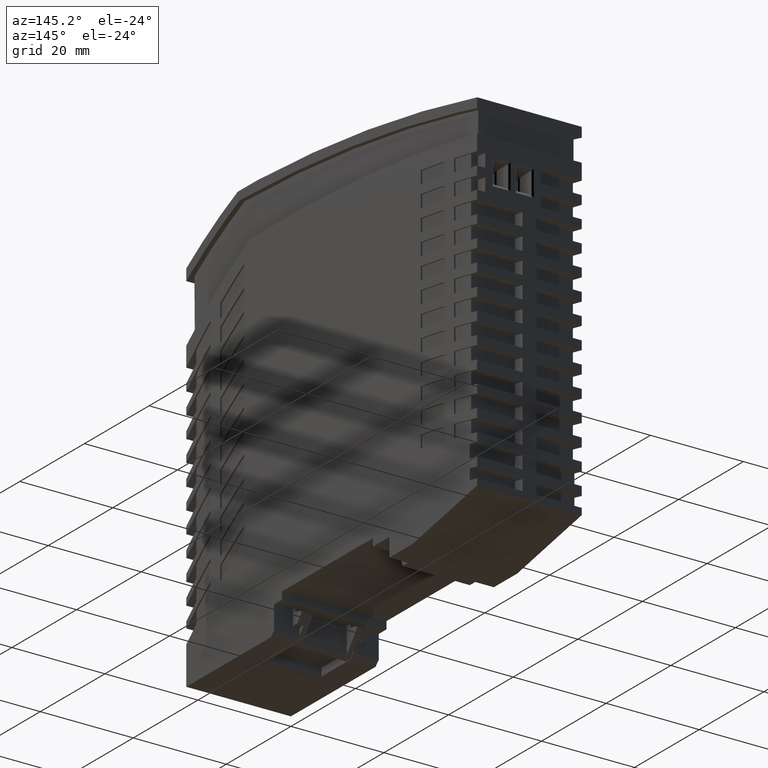
[diagram: clean part render]
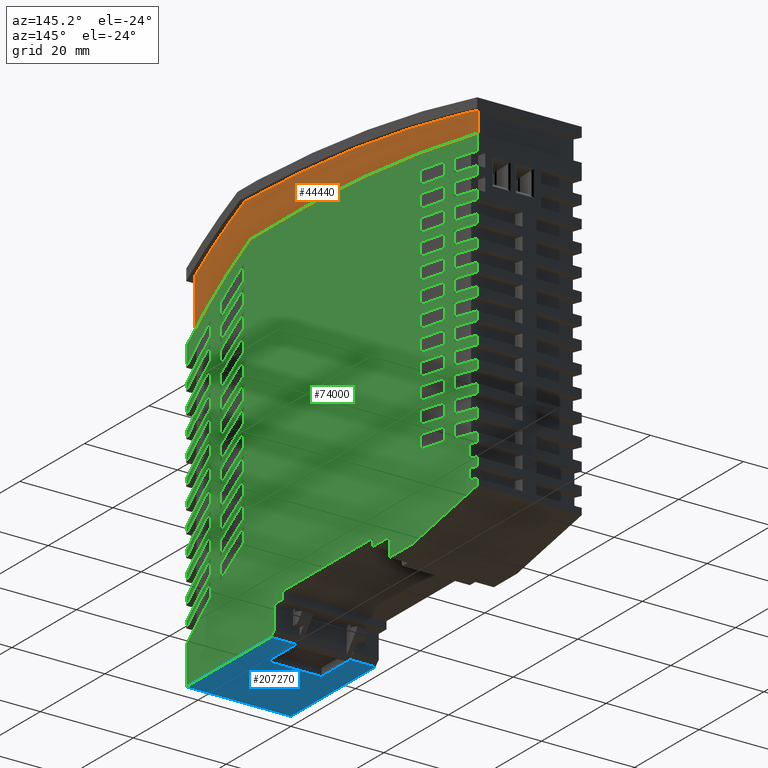
[diagram: same view with three faces highlighted in distinct colors, each labeled with its STEP entity id]
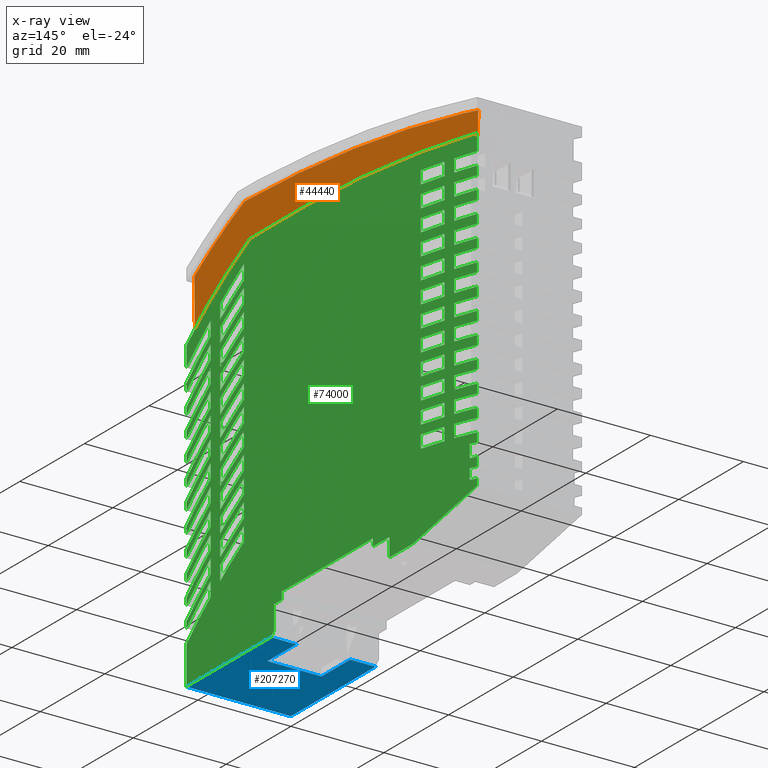
[diagram: x-ray of the same camera — body ghosted, the three highlighted faces saturated]
A machine part, auxiliary view with three faces highlighted in distinct colors.
The next image is the same camera in x-ray (body ghosted, the three faces saturated) — at least one of them is partly hidden behind the body in this view.
Their STEP definitions:

[orange] entity #44440 — the highlighted planar face has unit normal (1, 0, 0).
#8920=CARTESIAN_POINT('',(-43.215851796274,0.,0.));
#8930=DIRECTION('',(0.00872653549837375,-0.999961923064171,0.));
#8940=VECTOR('',#8930,1.);
#8950=LINE('',#8920,#8940);
#8960=CARTESIAN_POINT('',(-43.9071485745402,79.2147646602632,0.));
#8970=VERTEX_POINT('',#8960);
#8980=CARTESIAN_POINT('',(-43.8004748452349,66.9911660149067,0.));
#8990=VERTEX_POINT('',#8980);
#9000=EDGE_CURVE('',#8970,#8990,#8950,.T.);
#10900=CARTESIAN_POINT('',(19.7066423710768,-8.36763282685864,0.));
#10910=DIRECTION('',(0.,0.,1.));
#10920=DIRECTION('',(-0.455955103889732,0.890002777095051,0.));
#10930=AXIS2_PLACEMENT_3D('',#10900,#10910,#10920);
#10940=CIRCLE('',#10930,98.55);
#10950=CARTESIAN_POINT('',(-25.2277331172552,79.3421408558592,0.));
#10960=VERTEX_POINT('',#10950);
#10970=EDGE_CURVE('',#10960,#8990,#10940,.T.);
#43860=CARTESIAN_POINT('',(8.1380492309038,82.0977916081144,0.));
#43870=DIRECTION('',(0.,0.,1.));
#43880=DIRECTION('',(1.,0.,0.));
#43890=AXIS2_PLACEMENT_3D('',#43860,#43870,#43880);
#43900=PLANE('',#43890);
#43910=CARTESIAN_POINT('',(43.2128045815677,0.,0.));
#43920=DIRECTION('',(0.00872653549837375,0.999961923064171,0.));
#43930=VECTOR('',#43920,1.);
#43940=LINE('',#43910,#43930);
#43950=CARTESIAN_POINT('',(43.8615452371132,74.338316002966,0.));
#43960=VERTEX_POINT('',#43950);
#43970=CARTESIAN_POINT('',(43.9042289013603,79.229379471612,0.));
#43980=VERTEX_POINT('',#43970);
#43990=EDGE_CURVE('',#43960,#43980,#43940,.T.);
#44000=ORIENTED_EDGE('',*,*,#43990,.T.);
#44010=CARTESIAN_POINT('',(-15.7001371396532,-268.577429468789,0.));
#44020=DIRECTION('',(0.,0.,1.));
#44030=DIRECTION('',(0.171523095912363,0.985180099052269,0.));
#44040=AXIS2_PLACEMENT_3D('',#44010,#44020,#44030);
#44050=CIRCLE('',#44040,348.05);
#44060=EDGE_CURVE('',#43960,#10960,#44050,.T.);
#44070=ORIENTED_EDGE('',*,*,#44060,.F.);
#44080=ORIENTED_EDGE('',*,*,#10970,.F.);
#44090=ORIENTED_EDGE('',*,*,#9000,.T.);
#44100=CARTESIAN_POINT('',(0.,110.04848302035,0.));
#44110=DIRECTION('',(-0.818366609781339,-0.574696521648599,0.));
#44120=VECTOR('',#44110,1.);
#44130=LINE('',#44100,#44120);
#44140=CARTESIAN_POINT('',(-43.8015236073672,79.2889396088841,0.));
#44150=VERTEX_POINT('',#44140);
#44160=EDGE_CURVE('',#44150,#8970,#44130,.T.);
#44170=ORIENTED_EDGE('',*,*,#44160,.T.);
#44180=CARTESIAN_POINT('',(12.017640978483,-1.26055365418858,0.));
#44190=DIRECTION('',(0.,0.,1.));
#44200=DIRECTION('',(0.,1.,0.));
#44210=AXIS2_PLACEMENT_3D('',#44180,#44190,#44200);
#44220=CIRCLE('',#44210,97.9999999999999);
#44230=CARTESIAN_POINT('',(-28.3867095319688,88.0226388280952,0.));
#44240=VERTEX_POINT('',#44230);
#44250=EDGE_CURVE('',#44240,#44150,#44220,.T.);
#44260=ORIENTED_EDGE('',*,*,#44250,.T.);
#44270=CARTESIAN_POINT('',(-33.8174223565965,-259.934984106387,0.));
#44280=DIRECTION('',(0.,0.,1.));
#44290=DIRECTION('',(0.,1.,0.));
#44300=AXIS2_PLACEMENT_3D('',#44270,#44280,#44290);
#44310=CIRCLE('',#44300,347.999999999998);
#44320=CARTESIAN_POINT('',(39.218210283461,80.3146248057549,0.));
#44330=VERTEX_POINT('',#44320);
#44340=EDGE_CURVE('',#44330,#44240,#44310,.T.);
#44350=ORIENTED_EDGE('',*,*,#44340,.T.);
#44360=CARTESIAN_POINT('',(0.,89.3972561809237,0.));
#44370=DIRECTION('',(0.974215235442107,-0.225620644074253,0.));
#44380=VECTOR('',#44370,1.);
#44390=LINE('',#44360,#44380);
#44400=EDGE_CURVE('',#44330,#43980,#44390,.T.);
#44410=ORIENTED_EDGE('',*,*,#44400,.F.);
#44420=EDGE_LOOP('',(#44410,#44350,#44260,#44170,#44090,#44080,#44070,
#44000));
#44430=FACE_OUTER_BOUND('',#44420,.T.);
#44440=ADVANCED_FACE('',(#44430),#43900,.T.);

[blue] entity #207270 — the highlighted planar face has unit normal (0, 0, -1).
#73410=CARTESIAN_POINT('',(-18.8015236073701,0.029072276211352,1.));
#73420=VERTEX_POINT('',#73410);
#73450=CARTESIAN_POINT('',(0.,0.029072276211352,1.));
#73460=DIRECTION('',(1.,0.,0.));
#73470=VECTOR('',#73460,1.);
#73480=LINE('',#73450,#73470);
#73490=CARTESIAN_POINT('',(-45.0015236073532,0.029072276211352,1.));
#73500=VERTEX_POINT('',#73490);
#73510=EDGE_CURVE('',#73500,#73420,#73480,.T.);
#84740=CARTESIAN_POINT('',(-45.0015236073532,0.029072276211352,16.25));
#84750=DIRECTION('',(0.,0.,1.));
#84760=VECTOR('',#84750,1.);
#84770=LINE('',#84740,#84760);
#84780=CARTESIAN_POINT('',(-45.0015236073532,0.029072276211352,-21.5));
#84790=VERTEX_POINT('',#84780);
#84800=EDGE_CURVE('',#84790,#73500,#84770,.T.);
#189270=CARTESIAN_POINT('',(0.,0.029072276211352,-21.5));
#189280=DIRECTION('',(-1.,0.,0.));
#189290=VECTOR('',#189280,1.);
#189300=LINE('',#189270,#189290);
#189310=CARTESIAN_POINT('',(-18.8015236073701,0.029072276211352,-21.5));
#189320=VERTEX_POINT('',#189310);
#189330=EDGE_CURVE('',#189320,#84790,#189300,.T.);
#206790=CARTESIAN_POINT('',(-45.6666036073671,0.029072276211352,
-39.11008));
#206800=DIRECTION('',(0.,-1.,0.));
#206810=DIRECTION('',(1.,0.,0.));
#206820=AXIS2_PLACEMENT_3D('',#206790,#206800,#206810);
#206830=PLANE('',#206820);
#206840=CARTESIAN_POINT('',(-18.8015236073701,0.029072276211352,16.25));
#206850=DIRECTION('',(0.,0.,-1.));
#206860=VECTOR('',#206850,1.);
#206870=LINE('',#206840,#206860);
#206880=CARTESIAN_POINT('',(-18.8015236073701,0.029072276211352,-4.45));
#206890=VERTEX_POINT('',#206880);
#206900=EDGE_CURVE('',#73420,#206890,#206870,.T.);
#206910=ORIENTED_EDGE('',*,*,#206900,.F.);
#206920=CARTESIAN_POINT('',(0.,0.029072276211352,-4.45));
#206930=DIRECTION('',(1.,0.,0.));
#206940=VECTOR('',#206930,1.);
#206950=LINE('',#206920,#206940);
#206960=CARTESIAN_POINT('',(-27.7015236073701,0.029072276211352,-4.45));
#206970=VERTEX_POINT('',#206960);
#206980=EDGE_CURVE('',#206970,#206890,#206950,.T.);
#206990=ORIENTED_EDGE('',*,*,#206980,.T.);
#207000=CARTESIAN_POINT('',(-27.7015236073701,0.029072276211352,16.25));
#207010=DIRECTION('',(0.,0.,-1.));
#207020=VECTOR('',#207010,1.);
#207030=LINE('',#207000,#207020);
#207040=CARTESIAN_POINT('',(-27.7015236073701,0.029072276211352,-16.05))
;
#207050=VERTEX_POINT('',#207040);
#207060=EDGE_CURVE('',#206970,#207050,#207030,.T.);
#207070=ORIENTED_EDGE('',*,*,#207060,.F.);
#207080=CARTESIAN_POINT('',(0.,0.029072276211352,-16.05));
#207090=DIRECTION('',(-1.,0.,0.));
#207100=VECTOR('',#207090,1.);
#207110=LINE('',#207080,#207100);
#207120=CARTESIAN_POINT('',(-18.8015236073701,0.029072276211352,-16.05))
;
#207130=VERTEX_POINT('',#207120);
#207140=EDGE_CURVE('',#207130,#207050,#207110,.T.);
#207150=ORIENTED_EDGE('',*,*,#207140,.T.);
#207160=CARTESIAN_POINT('',(-18.8015236073701,0.029072276211352,16.25));
#207170=DIRECTION('',(0.,0.,-1.));
#207180=VECTOR('',#207170,1.);
#207190=LINE('',#207160,#207180);
#207200=EDGE_CURVE('',#207130,#189320,#207190,.T.);
#207210=ORIENTED_EDGE('',*,*,#207200,.F.);
#207220=ORIENTED_EDGE('',*,*,#189330,.F.);
#207230=ORIENTED_EDGE('',*,*,#84800,.F.);
#207240=ORIENTED_EDGE('',*,*,#73510,.F.);
#207250=EDGE_LOOP('',(#207240,#207230,#207220,#207210,#207150,#207070,
#206990,#206910));
#207260=FACE_OUTER_BOUND('',#207250,.T.);
#207270=ADVANCED_FACE('',(#207260),#206830,.T.);

[green] entity #74000 — the highlighted planar face has unit normal (1, 0, 0).
#590=CARTESIAN_POINT('',(-27.1415236073671,33.8090722762521,1.));
#600=VERTEX_POINT('',#590);
#760=CARTESIAN_POINT('',(-34.4715236073671,28.9487135992783,1.));
#770=VERTEX_POINT('',#760);
#800=CARTESIAN_POINT('',(30.4869845881102,-61.0590205852294,1.));
#810=DIRECTION('',(0.,0.,-1.));
#820=DIRECTION('',(0.,-1.,0.));
#830=AXIS2_PLACEMENT_3D('',#800,#810,#820);
#840=CIRCLE('',#830,111.000000000049);
#850=EDGE_CURVE('',#770,#600,#840,.T.);
#2230=CARTESIAN_POINT('',(34.8684763926331,50.9417781148335,1.));
#2240=VERTEX_POINT('',#2230);
#2390=CARTESIAN_POINT('',(34.8684763926329,53.7302669884824,1.));
#2400=VERTEX_POINT('',#2390);
#2430=CARTESIAN_POINT('',(34.8684763926329,0.,1.));
#2440=DIRECTION('',(0.,1.,0.));
#2450=VECTOR('',#2440,1.);
#2460=LINE('',#2430,#2450);
#2470=EDGE_CURVE('',#2240,#2400,#2460,.T.);
#6480=CARTESIAN_POINT('',(-27.1415236073671,30.7090722762521,1.));
#6490=VERTEX_POINT('',#6480);
#6590=CARTESIAN_POINT('',(-27.1415236073671,0.,1.));
#6600=DIRECTION('',(0.,1.,0.));
#6610=VECTOR('',#6600,1.);
#6620=LINE('',#6590,#6610);
#6630=EDGE_CURVE('',#6490,#600,#6620,.T.);
#11030=CARTESIAN_POINT('',(-25.2277331172548,79.3421408558594,1.));
#11040=VERTEX_POINT('',#11030);
#11070=CARTESIAN_POINT('',(19.7066423710768,-8.36763282685864,1.));
#11080=DIRECTION('',(0.,0.,1.));
#11090=DIRECTION('',(-0.455955103889732,0.890002777095051,0.));
#11100=AXIS2_PLACEMENT_3D('',#11070,#11080,#11090);
#11110=CIRCLE('',#11100,98.55);
#11120=CARTESIAN_POINT('',(-45.0015236073532,65.9624132898226,1.));
#11130=VERTEX_POINT('',#11120);
#11140=EDGE_CURVE('',#11040,#11130,#11110,.T.);
#11920=CARTESIAN_POINT('',(-34.4715236073671,38.1487135992783,1.));
#11930=VERTEX_POINT('',#11920);
#12080=CARTESIAN_POINT('',(-34.4715236073671,35.0487135992783,1.));
#12090=VERTEX_POINT('',#12080);
#12120=CARTESIAN_POINT('',(-34.4715236073671,0.,1.));
#12130=DIRECTION('',(0.,-1.,0.));
#12140=VECTOR('',#12130,1.);
#12150=LINE('',#12120,#12140);
#12160=EDGE_CURVE('',#11930,#12090,#12150,.T.);
#13050=CARTESIAN_POINT('',(-27.1415236073762,70.6090722762467,1.));
#13060=VERTEX_POINT('',#13050);
#13220=CARTESIAN_POINT('',(-34.4715236073671,65.7487135992783,1.));
#13230=VERTEX_POINT('',#13220);
#13260=CARTESIAN_POINT('',(30.4869845880803,-24.259020585185,1.));
#13270=DIRECTION('',(0.,0.,-1.));
#13280=DIRECTION('',(0.,-1.,0.));
#13290=AXIS2_PLACEMENT_3D('',#13260,#13270,#13280);
#13300=CIRCLE('',#13290,110.999999999996);
#13310=EDGE_CURVE('',#13230,#13060,#13300,.T.);
#14200=CARTESIAN_POINT('',(37.8684763926296,59.7780481378862,1.));
#14210=VERTEX_POINT('',#14200);
#14540=CARTESIAN_POINT('',(44.9984763926468,58.5299668623664,1.));
#14550=VERTEX_POINT('',#14540);
#14580=CARTESIAN_POINT('',(-15.9369906466218,-268.59021718634,1.));
#14590=DIRECTION('',(0.,0.,1.));
#14600=DIRECTION('',(0.,1.,0.));
#14610=AXIS2_PLACEMENT_3D('',#14580,#14590,#14600);
#14620=CIRCLE('',#14610,332.747270395045);
#14630=EDGE_CURVE('',#14550,#14210,#14620,.T.);
#18900=CARTESIAN_POINT('',(44.9984763926468,6.02907227620774,1.));
#18910=VERTEX_POINT('',#18900);
#18940=CARTESIAN_POINT('',(44.9984763926468,0.,1.));
#18950=DIRECTION('',(0.,-1.,0.));
#18960=VECTOR('',#18950,1.);
#18970=LINE('',#18940,#18960);
#18980=CARTESIAN_POINT('',(44.9984763926469,7.42523708599833,1.));
#18990=VERTEX_POINT('',#18980);
#19000=EDGE_CURVE('',#18990,#18910,#18970,.T.);
#19220=CARTESIAN_POINT('',(44.9984763926467,9.71694919013748,1.));
#19230=VERTEX_POINT('',#19220);
#19260=CARTESIAN_POINT('',(44.9984763926468,11.6225007744063,1.));
#19270=VERTEX_POINT('',#19260);
#19280=EDGE_CURVE('',#19270,#19230,#18970,.T.);
#19500=CARTESIAN_POINT('',(44.9984763926468,14.422921872841,1.));
#19510=VERTEX_POINT('',#19500);
#19540=CARTESIAN_POINT('',(44.9984763926468,0.,1.));
#19550=DIRECTION('',(0.,-1.,0.));
#19560=VECTOR('',#19550,1.);
#19570=LINE('',#19540,#19560);
#19580=CARTESIAN_POINT('',(44.9984763926468,16.328254243344,1.));
#19590=VERTEX_POINT('',#19580);
#19600=EDGE_CURVE('',#19590,#19510,#19570,.T.);
#19820=CARTESIAN_POINT('',(44.9984763926468,19.1278372636677,1.));
#19830=VERTEX_POINT('',#19820);
#19860=CARTESIAN_POINT('',(44.9984763926468,21.0286517449619,1.));
#19870=VERTEX_POINT('',#19860);
#19880=EDGE_CURVE('',#19870,#19830,#19570,.T.);
#20060=CARTESIAN_POINT('',(44.9984763926468,23.8282481274878,1.));
#20070=VERTEX_POINT('',#20060);
#20100=CARTESIAN_POINT('',(44.9984763926468,25.7259068109909,1.));
#20110=VERTEX_POINT('',#20100);
#20120=EDGE_CURVE('',#20110,#20070,#19570,.T.);
#20300=CARTESIAN_POINT('',(44.9984763926468,28.5255159152431,1.));
#20310=VERTEX_POINT('',#20300);
#20340=CARTESIAN_POINT('',(44.9984763926468,30.4201661538958,1.));
#20350=VERTEX_POINT('',#20340);
#20360=EDGE_CURVE('',#20350,#20310,#19570,.T.);
#20540=CARTESIAN_POINT('',(44.9984763926468,33.2197873802544,1.));
#20550=VERTEX_POINT('',#20540);
#20580=CARTESIAN_POINT('',(44.9984763926468,35.1115674083356,1.));
#20590=VERTEX_POINT('',#20580);
#20600=EDGE_CURVE('',#20590,#20550,#19570,.T.);
#20780=CARTESIAN_POINT('',(44.9984763926468,37.9112001945338,1.));
#20790=VERTEX_POINT('',#20780);
#20820=CARTESIAN_POINT('',(44.9984763926468,39.8002398280561,1.));
#20830=VERTEX_POINT('',#20820);
#20840=EDGE_CURVE('',#20830,#20790,#19570,.T.);
#21020=CARTESIAN_POINT('',(44.9984763926468,42.5998836467058,1.));
#21030=VERTEX_POINT('',#21020);
#21060=CARTESIAN_POINT('',(44.9984763926468,44.4863049205986,1.));
#21070=VERTEX_POINT('',#21060);
#21080=EDGE_CURVE('',#21070,#21030,#19570,.T.);
#21260=CARTESIAN_POINT('',(44.9984763926468,47.285959276017,1.));
#21270=VERTEX_POINT('',#21260);
#21300=CARTESIAN_POINT('',(44.9984763926468,49.1698770229475,1.));
#21310=VERTEX_POINT('',#21300);
#21320=EDGE_CURVE('',#21310,#21270,#19570,.T.);
#21500=CARTESIAN_POINT('',(44.9984763926468,51.9695414491985,1.));
#21510=VERTEX_POINT('',#21500);
#21540=CARTESIAN_POINT('',(44.9984763926468,53.8510638277124,1.));
#21550=VERTEX_POINT('',#21540);
#21560=EDGE_CURVE('',#21550,#21510,#19570,.T.);
#21740=CARTESIAN_POINT('',(44.9984763926468,56.6507378861591,1.));
#21750=VERTEX_POINT('',#21740);
#21780=EDGE_CURVE('',#14550,#21750,#19570,.T.);
#21930=CARTESIAN_POINT('',(44.9984763926468,61.3296501397554,1.));
#21940=VERTEX_POINT('',#21930);
#21970=CARTESIAN_POINT('',(44.9984763926468,63.2066819276949,1.));
#21980=VERTEX_POINT('',#21970);
#21990=EDGE_CURVE('',#21980,#21940,#19570,.T.);
#22210=CARTESIAN_POINT('',(44.9984763926468,66.0063740342895,1.));
#22220=VERTEX_POINT('',#22210);
#22250=CARTESIAN_POINT('',(44.9984763926468,67.8812994988935,1.));
#22260=VERTEX_POINT('',#22250);
#22270=EDGE_CURVE('',#22260,#22220,#19570,.T.);
#22490=CARTESIAN_POINT('',(44.9984763926468,70.6810000668508,1.));
#22500=VERTEX_POINT('',#22490);
#22530=CARTESIAN_POINT('',(44.9984763926468,74.1388975645999,1.));
#22540=VERTEX_POINT('',#22530);
#22550=EDGE_CURVE('',#22540,#22500,#19570,.T.);
#28550=CARTESIAN_POINT('',(37.8684763926287,22.437602963261,1.));
#28560=VERTEX_POINT('',#28550);
#28840=CARTESIAN_POINT('',(-15.9369906466428,-268.590217186453,1.));
#28850=DIRECTION('',(0.,0.,1.));
#28860=DIRECTION('',(0.,1.,0.));
#28870=AXIS2_PLACEMENT_3D('',#28840,#28850,#28860);
#28880=CIRCLE('',#28870,295.95982900456);
#28890=EDGE_CURVE('',#19870,#28560,#28880,.T.);
#51360=CARTESIAN_POINT('',(37.8684763926329,71.8845421078598,1.));
#51370=VERTEX_POINT('',#51360);
#51400=CARTESIAN_POINT('',(-15.9369906466675,-268.590217186589,1.));
#51410=DIRECTION('',(0.,0.,-1.));
#51420=DIRECTION('',(0.,-1.,0.));
#51430=AXIS2_PLACEMENT_3D('',#51400,#51410,#51420);
#51440=CIRCLE('',#51430,344.699999999899);
#51450=EDGE_CURVE('',#51370,#22500,#51440,.T.);
#52170=CARTESIAN_POINT('',(37.8684763926292,62.5671800078799,1.));
#52180=VERTEX_POINT('',#52170);
#52210=CARTESIAN_POINT('',(-15.9369906467338,-268.590217186958,1.));
#52220=DIRECTION('',(0.,0.,-1.));
#52230=DIRECTION('',(0.,-1.,0.));
#52240=AXIS2_PLACEMENT_3D('',#52210,#52220,#52230);
#52250=CIRCLE('',#52240,335.500000000274);
#52260=EDGE_CURVE('',#52180,#21940,#52250,.T.);
#52850=CARTESIAN_POINT('',(37.8684763926296,57.9060028782317,1.));
#52860=VERTEX_POINT('',#52850);
#52890=CARTESIAN_POINT('',(-15.9369906466155,-268.590217186265,1.));
#52900=DIRECTION('',(0.,0.,-1.));
#52910=DIRECTION('',(0.,-1.,0.));
#52920=AXIS2_PLACEMENT_3D('',#52890,#52900,#52910);
#52930=CIRCLE('',#52920,330.89999999957);
#52940=EDGE_CURVE('',#52860,#21750,#52930,.T.);
#53420=CARTESIAN_POINT('',(37.8684763926286,53.2430653008146,1.));
#53430=VERTEX_POINT('',#53420);
#53460=CARTESIAN_POINT('',(-15.9369906466434,-268.590217186445,1.));
#53470=DIRECTION('',(0.,0.,-1.));
#53480=DIRECTION('',(0.,-1.,0.));
#53490=AXIS2_PLACEMENT_3D('',#53460,#53470,#53480);
#53500=CIRCLE('',#53490,326.299999999752);
#53510=EDGE_CURVE('',#53430,#21510,#53500,.T.);
#54260=CARTESIAN_POINT('',(37.868476392629,48.5782896305568,1.));
#54270=VERTEX_POINT('',#54260);
#54300=CARTESIAN_POINT('',(-15.9369906467247,-268.590217186924,1.));
#54310=DIRECTION('',(0.,0.,-1.));
#54320=DIRECTION('',(0.,-1.,0.));
#54330=AXIS2_PLACEMENT_3D('',#54300,#54310,#54320);
#54340=CIRCLE('',#54330,321.700000000238);
#54350=EDGE_CURVE('',#54270,#21270,#54340,.T.);
#55100=CARTESIAN_POINT('',(37.8684763926289,43.911593554755,1.));
#55110=VERTEX_POINT('',#55100);
#55140=CARTESIAN_POINT('',(-15.9369906466786,-268.59021718664,1.));
#55150=DIRECTION('',(0.,0.,-1.));
#55160=DIRECTION('',(0.,-1.,0.));
#55170=AXIS2_PLACEMENT_3D('',#55140,#55150,#55160);
#55180=CIRCLE('',#55170,317.09999999995);
#55190=EDGE_CURVE('',#55110,#21030,#55180,.T.);
#55940=CARTESIAN_POINT('',(37.8684763926286,34.5720854115748,1.));
#55950=VERTEX_POINT('',#55940);
#55980=CARTESIAN_POINT('',(-15.9369906467933,-268.590217187251,1.));
#55990=DIRECTION('',(0.,0.,-1.));
#56000=DIRECTION('',(0.,-1.,0.));
#56010=AXIS2_PLACEMENT_3D('',#55980,#55990,#56000);
#56020=CIRCLE('',#56010,307.900000000572);
#56030=EDGE_CURVE('',#55950,#20550,#56020,.T.);
#56510=CARTESIAN_POINT('',(37.868476392629,29.8990819794307,1.));
#56520=VERTEX_POINT('',#56510);
#56550=CARTESIAN_POINT('',(-15.9369906467757,-268.590217187183,1.));
#56560=DIRECTION('',(0.,0.,-1.));
#56570=DIRECTION('',(0.,-1.,0.));
#56580=AXIS2_PLACEMENT_3D('',#56550,#56560,#56570);
#56590=CIRCLE('',#56580,303.300000000502);
#56600=EDGE_CURVE('',#56520,#20310,#56590,.T.);
#57270=CARTESIAN_POINT('',(37.8684763926286,25.2237745098966,1.));
#57280=VERTEX_POINT('',#57270);
#57310=CARTESIAN_POINT('',(-15.9369906467214,-268.590217186874,1.));
#57320=DIRECTION('',(0.,0.,-1.));
#57330=DIRECTION('',(0.,-1.,0.));
#57340=AXIS2_PLACEMENT_3D('',#57310,#57320,#57330);
#57350=CIRCLE('',#57340,298.700000000188);
#57360=EDGE_CURVE('',#57280,#20070,#57350,.T.);
#57840=CARTESIAN_POINT('',(37.8684763926291,20.5460512347619,1.));
#57850=VERTEX_POINT('',#57840);
#57880=CARTESIAN_POINT('',(-15.9369906466646,-268.590217186548,1.));
#57890=DIRECTION('',(0.,0.,-1.));
#57900=DIRECTION('',(0.,-1.,0.));
#57910=AXIS2_PLACEMENT_3D('',#57880,#57890,#57900);
#57920=CIRCLE('',#57910,294.099999999858);
#57930=EDGE_CURVE('',#57850,#19830,#57920,.T.);
#58540=CARTESIAN_POINT('',(-0.00152360735317814,90.0290722762114,1.));
#58550=DIRECTION('',(0.,0.,1.));
#58560=DIRECTION('',(-1.,0.,0.));
#58570=AXIS2_PLACEMENT_3D('',#58540,#58550,#58560);
#58580=PLANE('',#58570);
#58590=CARTESIAN_POINT('',(-15.9369906467038,-268.590217186791,1.));
#58600=DIRECTION('',(0.,0.,1.));
#58610=DIRECTION('',(0.,1.,0.));
#58620=AXIS2_PLACEMENT_3D('',#58590,#58600,#58610);
#58630=CIRCLE('',#58620,295.954805805004);
#58640=CARTESIAN_POINT('',(34.8684763926329,22.9711856051293,1.));
#58650=VERTEX_POINT('',#58640);
#58660=CARTESIAN_POINT('',(27.5384763926329,24.1539216867126,1.));
#58670=VERTEX_POINT('',#58660);
#58680=EDGE_CURVE('',#58650,#58670,#58630,.T.);
#58690=ORIENTED_EDGE('',*,*,#58680,.T.);
#58700=CARTESIAN_POINT('',(34.8684763926293,0.,1.));
#58710=DIRECTION('',(0.,1.,0.));
#58720=VECTOR('',#58710,1.);
#58730=LINE('',#58700,#58720);
#58740=CARTESIAN_POINT('',(34.8684763926293,25.7573571517402,1.));
#58750=VERTEX_POINT('',#58740);
#58760=EDGE_CURVE('',#58650,#58750,#58730,.T.);
#58770=ORIENTED_EDGE('',*,*,#58760,.F.);
#58780=CARTESIAN_POINT('',(-15.936990646765,-268.590217187165,1.));
#58790=DIRECTION('',(0.,0.,-1.));
#58800=DIRECTION('',(0.,-1.,0.));
#58810=AXIS2_PLACEMENT_3D('',#58780,#58790,#58800);
#58820=CIRCLE('',#58810,298.700000000482);
#58830=CARTESIAN_POINT('',(27.5384763926329,26.9289425402451,1.));
#58840=VERTEX_POINT('',#58830);
#58850=EDGE_CURVE('',#58840,#58750,#58820,.T.);
#58860=ORIENTED_EDGE('',*,*,#58850,.T.);
#58870=CARTESIAN_POINT('',(27.5384763926329,0.,1.));
#58880=DIRECTION('',(0.,-1.,0.));
#58890=VECTOR('',#58880,1.);
#58900=LINE('',#58870,#58890);
#58910=EDGE_CURVE('',#58840,#58670,#58900,.T.);
#58920=ORIENTED_EDGE('',*,*,#58910,.F.);
#58930=EDGE_LOOP('',(#58920,#58860,#58770,#58690));
#58940=FACE_BOUND('',#58930,.T.);
#58950=CARTESIAN_POINT('',(34.8684763926328,0.,1.));
#58960=DIRECTION('',(0.,1.,0.));
#58970=VECTOR('',#58960,1.);
#58980=LINE('',#58950,#58970);
#58990=CARTESIAN_POINT('',(34.868476392633,46.2845002536193,1.));
#59000=VERTEX_POINT('',#58990);
#59010=CARTESIAN_POINT('',(34.8684763926328,49.0726457968786,1.));
#59020=VERTEX_POINT('',#59010);
#59030=EDGE_CURVE('',#59000,#59020,#58980,.T.);
#59040=ORIENTED_EDGE('',*,*,#59030,.F.);
#59050=CARTESIAN_POINT('',(-15.9369906467313,-268.590217186983,1.));
#59060=DIRECTION('',(0.,0.,-1.));
#59070=DIRECTION('',(0.,-1.,0.));
#59080=AXIS2_PLACEMENT_3D('',#59050,#59060,#59070);
#59090=CIRCLE('',#59080,321.700000000298);
#59100=CARTESIAN_POINT('',(27.5384763926329,50.1585455806561,1.));
#59110=VERTEX_POINT('',#59100);
#59120=EDGE_CURVE('',#59110,#59020,#59090,.T.);
#59130=ORIENTED_EDGE('',*,*,#59120,.T.);
#59140=CARTESIAN_POINT('',(27.5384763926329,0.,1.));
#59150=DIRECTION('',(0.,-1.,0.));
#59160=VECTOR('',#59150,1.);
#59170=LINE('',#59140,#59160);
#59180=CARTESIAN_POINT('',(27.538476392633,47.3799822465968,1.));
#59190=VERTEX_POINT('',#59180);
#59200=EDGE_CURVE('',#59110,#59190,#59170,.T.);
#59210=ORIENTED_EDGE('',*,*,#59200,.F.);
#59220=CARTESIAN_POINT('',(-15.9369906466885,-268.590217186712,1.));
#59230=DIRECTION('',(0.,0.,1.));
#59240=DIRECTION('',(0.,1.,0.));
#59250=AXIS2_PLACEMENT_3D('',#59220,#59230,#59240);
#59260=CIRCLE('',#59250,318.947147916724);
#59270=EDGE_CURVE('',#59000,#59190,#59260,.T.);
#59280=ORIENTED_EDGE('',*,*,#59270,.T.);
#59290=EDGE_LOOP('',(#59280,#59210,#59130,#59040));
#59300=FACE_BOUND('',#59290,.T.);
#59310=CARTESIAN_POINT('',(-15.936990646674,-268.590217186597,1.));
#59320=DIRECTION('',(0.,0.,1.));
#59330=DIRECTION('',(0.,1.,0.));
#59340=AXIS2_PLACEMENT_3D('',#59310,#59320,#59330);
#59350=CIRCLE('',#59340,300.553131271608);
#59360=CARTESIAN_POINT('',(34.868476392633,27.6377174112158,1.));
#59370=VERTEX_POINT('',#59360);
#59380=CARTESIAN_POINT('',(27.5384763926329,28.801895154807,1.));
#59390=VERTEX_POINT('',#59380);
#59400=EDGE_CURVE('',#59370,#59390,#59350,.T.);
#59410=ORIENTED_EDGE('',*,*,#59400,.T.);
#59420=CARTESIAN_POINT('',(34.8684763926328,0.,1.));
#59430=DIRECTION('',(0.,1.,0.));
#59440=VECTOR('',#59430,1.);
#59450=LINE('',#59420,#59440);
#59460=CARTESIAN_POINT('',(34.8684763926328,30.424321789122,1.));
#59470=VERTEX_POINT('',#59460);
#59480=EDGE_CURVE('',#59370,#59470,#59450,.T.);
#59490=ORIENTED_EDGE('',*,*,#59480,.F.);
#59500=CARTESIAN_POINT('',(-15.9369906467827,-268.590217187302,1.));
#59510=DIRECTION('',(0.,0.,-1.));
#59520=DIRECTION('',(0.,-1.,0.));
#59530=AXIS2_PLACEMENT_3D('',#59500,#59510,#59520);
#59540=CIRCLE('',#59530,303.300000000621);
#59550=CARTESIAN_POINT('',(27.5384763926329,31.5776921002853,1.));
#59560=VERTEX_POINT('',#59550);
#59570=EDGE_CURVE('',#59560,#59470,#59540,.T.);
#59580=ORIENTED_EDGE('',*,*,#59570,.T.);
#59590=CARTESIAN_POINT('',(27.5384763926329,0.,1.));
#59600=DIRECTION('',(0.,-1.,0.));
#59610=VECTOR('',#59600,1.);
#59620=LINE('',#59590,#59610);
#59630=EDGE_CURVE('',#59560,#59390,#59620,.T.);
#59640=ORIENTED_EDGE('',*,*,#59630,.F.);
#59650=EDGE_LOOP('',(#59640,#59580,#59490,#59410));
#59660=FACE_BOUND('',#59650,.T.);
#59670=CARTESIAN_POINT('',(-34.4715236073671,0.,1.));
#59680=DIRECTION('',(0.,-1.,0.));
#59690=VECTOR('',#59680,1.);
#59700=LINE('',#59670,#59690);
#59710=CARTESIAN_POINT('',(-34.4715236073671,24.3487135992711,1.));
#59720=VERTEX_POINT('',#59710);
#59730=CARTESIAN_POINT('',(-34.4715236073671,21.2487135992783,1.));
#59740=VERTEX_POINT('',#59730);
#59750=EDGE_CURVE('',#59720,#59740,#59700,.T.);
#59760=ORIENTED_EDGE('',*,*,#59750,.F.);
#59770=CARTESIAN_POINT('',(30.4869845880688,-68.7590205851679,1.));
#59780=DIRECTION('',(0.,0.,1.));
#59790=DIRECTION('',(0.,1.,0.));
#59800=AXIS2_PLACEMENT_3D('',#59770,#59780,#59790);
#59810=CIRCLE('',#59800,110.999999999975);
#59820=CARTESIAN_POINT('',(-27.1415236073671,26.1090722762521,1.));
#59830=VERTEX_POINT('',#59820);
#59840=EDGE_CURVE('',#59830,#59740,#59810,.T.);
#59850=ORIENTED_EDGE('',*,*,#59840,.T.);
#59860=CARTESIAN_POINT('',(-27.1415236073671,0.,1.));
#59870=DIRECTION('',(0.,1.,0.));
#59880=VECTOR('',#59870,1.);
#59890=LINE('',#59860,#59880);
#59900=CARTESIAN_POINT('',(-27.1415236073671,29.2090722762461,1.));
#59910=VERTEX_POINT('',#59900);
#59920=EDGE_CURVE('',#59830,#59910,#59890,.T.);
#59930=ORIENTED_EDGE('',*,*,#59920,.F.);
#59940=CARTESIAN_POINT('',(30.4869845881222,-65.6590205852324,1.));
#59950=DIRECTION('',(0.,0.,-1.));
#59960=DIRECTION('',(0.,-1.,0.));
#59970=AXIS2_PLACEMENT_3D('',#59940,#59950,#59960);
#59980=CIRCLE('',#59970,111.000000000053);
#59990=EDGE_CURVE('',#59720,#59910,#59980,.T.);
#60000=ORIENTED_EDGE('',*,*,#59990,.T.);
#60010=EDGE_LOOP('',(#60000,#59930,#59850,#59760));
#60020=FACE_BOUND('',#60010,.T.);
#60030=CARTESIAN_POINT('',(-15.9369906466991,-268.590217186765,1.));
#60040=DIRECTION('',(0.,0.,1.));
#60050=DIRECTION('',(0.,1.,0.));
#60060=AXIS2_PLACEMENT_3D('',#60030,#60040,#60050);
#60070=CIRCLE('',#60060,328.144529384177);
#60080=CARTESIAN_POINT('',(34.868476392633,55.5974394007099,1.));
#60090=VERTEX_POINT('',#60080);
#60100=CARTESIAN_POINT('',(27.5384763926329,56.6615559529046,1.));
#60110=VERTEX_POINT('',#60100);
#60120=EDGE_CURVE('',#60090,#60110,#60070,.T.);
#60130=ORIENTED_EDGE('',*,*,#60120,.T.);
#60140=CARTESIAN_POINT('',(34.8684763926327,0.,1.));
#60150=DIRECTION('',(0.,1.,0.));
#60160=VECTOR('',#60150,1.);
#60170=LINE('',#60140,#60160);
#60180=CARTESIAN_POINT('',(34.8684763926327,58.3862567665861,1.));
#60190=VERTEX_POINT('',#60180);
#60200=EDGE_CURVE('',#60090,#60190,#60170,.T.);
#60210=ORIENTED_EDGE('',*,*,#60200,.F.);
#60220=CARTESIAN_POINT('',(-15.9369906467439,-268.590217187064,1.));
#60230=DIRECTION('',(0.,0.,-1.));
#60240=DIRECTION('',(0.,-1.,0.));
#60250=AXIS2_PLACEMENT_3D('',#60220,#60230,#60240);
#60260=CIRCLE('',#60250,330.90000000038);
#60270=CARTESIAN_POINT('',(27.5384763926329,59.4413266710828,1.));
#60280=VERTEX_POINT('',#60270);
#60290=EDGE_CURVE('',#60280,#60190,#60260,.T.);
#60300=ORIENTED_EDGE('',*,*,#60290,.T.);
#60310=CARTESIAN_POINT('',(27.5384763926329,0.,1.));
#60320=DIRECTION('',(0.,-1.,0.));
#60330=VECTOR('',#60320,1.);
#60340=LINE('',#60310,#60330);
#60350=EDGE_CURVE('',#60280,#60110,#60340,.T.);
#60360=ORIENTED_EDGE('',*,*,#60350,.F.);
#60370=EDGE_LOOP('',(#60360,#60300,#60210,#60130));
#60380=FACE_BOUND('',#60370,.T.);
#60390=CARTESIAN_POINT('',(-34.4715236073671,0.,1.));
#60400=DIRECTION('',(0.,-1.,0.));
#60410=VECTOR('',#60400,1.);
#60420=LINE('',#60390,#60410);
#60430=CARTESIAN_POINT('',(-34.4715236073671,47.3487135992711,1.));
#60440=VERTEX_POINT('',#60430);
#60450=CARTESIAN_POINT('',(-34.4715236073671,44.2487135992783,1.));
#60460=VERTEX_POINT('',#60450);
#60470=EDGE_CURVE('',#60440,#60460,#60420,.T.);
#60480=ORIENTED_EDGE('',*,*,#60470,.F.);
#60490=CARTESIAN_POINT('',(30.4869845881016,-45.7590205852164,1.));
#60500=DIRECTION('',(0.,0.,1.));
#60510=DIRECTION('',(0.,1.,0.));
#60520=AXIS2_PLACEMENT_3D('',#60490,#60500,#60510);
#60530=CIRCLE('',#60520,111.000000000034);
#60540=CARTESIAN_POINT('',(-27.1415236073671,49.1090722762522,1.));
#60550=VERTEX_POINT('',#60540);
#60560=EDGE_CURVE('',#60550,#60460,#60530,.T.);
#60570=ORIENTED_EDGE('',*,*,#60560,.T.);
#60580=CARTESIAN_POINT('',(-27.1415236073692,0.,1.));
#60590=DIRECTION('',(0.,1.,0.));
#60600=VECTOR('',#60590,1.);
#60610=LINE('',#60580,#60600);
#60620=CARTESIAN_POINT('',(-27.1415236073692,52.2090722762448,1.));
#60630=VERTEX_POINT('',#60620);
#60640=EDGE_CURVE('',#60550,#60630,#60610,.T.);
#60650=ORIENTED_EDGE('',*,*,#60640,.F.);
#60660=CARTESIAN_POINT('',(30.4869845881063,-42.6590205852088,1.));
#60670=DIRECTION('',(0.,0.,-1.));
#60680=DIRECTION('',(0.,-1.,0.));
#60690=AXIS2_PLACEMENT_3D('',#60660,#60670,#60680);
#60700=CIRCLE('',#60690,111.000000000024);
#60710=EDGE_CURVE('',#60440,#60630,#60700,.T.);
#60720=ORIENTED_EDGE('',*,*,#60710,.T.);
#60730=EDGE_LOOP('',(#60720,#60650,#60570,#60480));
#60740=FACE_BOUND('',#60730,.T.);
#60750=CARTESIAN_POINT('',(-27.1415236073761,0.,1.));
#60760=DIRECTION('',(0.,1.,0.));
#60770=VECTOR('',#60760,1.);
#60780=LINE('',#60750,#60770);
#60790=CARTESIAN_POINT('',(-27.1415236073762,35.3090722762467,1.));
#60800=VERTEX_POINT('',#60790);
#60810=CARTESIAN_POINT('',(-27.1415236073761,38.4090722762467,1.));
#60820=VERTEX_POINT('',#60810);
#60830=EDGE_CURVE('',#60800,#60820,#60780,.T.);
#60840=ORIENTED_EDGE('',*,*,#60830,.F.);
#60850=CARTESIAN_POINT('',(30.4869845880916,-56.4590205852006,1.));
#60860=DIRECTION('',(0.,0.,-1.));
#60870=DIRECTION('',(0.,-1.,0.));
#60880=AXIS2_PLACEMENT_3D('',#60850,#60860,#60870);
#60890=CIRCLE('',#60880,111.000000000015);
#60900=CARTESIAN_POINT('',(-34.4715236073671,33.5487135992783,1.));
#60910=VERTEX_POINT('',#60900);
#60920=EDGE_CURVE('',#60910,#60820,#60890,.T.);
#60930=ORIENTED_EDGE('',*,*,#60920,.T.);
#60940=CARTESIAN_POINT('',(-34.4715236073671,0.,1.));
#60950=DIRECTION('',(0.,-1.,0.));
#60960=VECTOR('',#60950,1.);
#60970=LINE('',#60940,#60960);
#60980=CARTESIAN_POINT('',(-34.4715236073672,30.4487135992783,1.));
#60990=VERTEX_POINT('',#60980);
#61000=EDGE_CURVE('',#60910,#60990,#60970,.T.);
#61010=ORIENTED_EDGE('',*,*,#61000,.F.);
#61020=CARTESIAN_POINT('',(30.486984588088,-59.5590205851967,1.));
#61030=DIRECTION('',(0.,0.,1.));
#61040=DIRECTION('',(0.,1.,0.));
#61050=AXIS2_PLACEMENT_3D('',#61020,#61030,#61040);
#61060=CIRCLE('',#61050,111.00000000001);
#61070=EDGE_CURVE('',#60800,#60990,#61060,.T.);
#61080=ORIENTED_EDGE('',*,*,#61070,.T.);
#61090=EDGE_LOOP('',(#61080,#61010,#60930,#60840));
#61100=FACE_BOUND('',#61090,.T.);
#61110=CARTESIAN_POINT('',(-15.9369906468577,-268.590217187914,1.));
#61120=DIRECTION('',(0.,0.,1.));
#61130=DIRECTION('',(0.,1.,0.));
#61140=AXIS2_PLACEMENT_3D('',#61110,#61120,#61130);
#61150=CIRCLE('',#61140,337.342123656137);
#61160=CARTESIAN_POINT('',(34.868476392633,64.9041799340342,1.));
#61170=VERTEX_POINT('',#61160);
#61180=CARTESIAN_POINT('',(27.5384763926329,65.9386936083439,1.));
#61190=VERTEX_POINT('',#61180);
#61200=EDGE_CURVE('',#61170,#61190,#61150,.T.);
#61210=ORIENTED_EDGE('',*,*,#61200,.T.);
#61220=CARTESIAN_POINT('',(34.8684763926329,0.,1.));
#61230=DIRECTION('',(0.,1.,0.));
#61240=VECTOR('',#61230,1.);
#61250=LINE('',#61220,#61240);
#61260=CARTESIAN_POINT('',(34.8684763926329,67.6936131098585,1.));
#61270=VERTEX_POINT('',#61260);
#61280=EDGE_CURVE('',#61170,#61270,#61250,.T.);
#61290=ORIENTED_EDGE('',*,*,#61280,.F.);
#61300=CARTESIAN_POINT('',(-15.9369906467468,-268.590217187113,1.));
#61310=DIRECTION('',(0.,0.,-1.));
#61320=DIRECTION('',(0.,-1.,0.));
#61330=AXIS2_PLACEMENT_3D('',#61300,#61310,#61320);
#61340=CIRCLE('',#61330,340.100000000428);
#61350=CARTESIAN_POINT('',(27.5384763926329,68.7195718288586,1.));
#61360=VERTEX_POINT('',#61350);
#61370=EDGE_CURVE('',#61360,#61270,#61340,.T.);
#61380=ORIENTED_EDGE('',*,*,#61370,.T.);
#61390=CARTESIAN_POINT('',(27.5384763926329,0.,1.));
#61400=DIRECTION('',(0.,-1.,0.));
#61410=VECTOR('',#61400,1.);
#61420=LINE('',#61390,#61410);
#61430=EDGE_CURVE('',#61360,#61190,#61420,.T.);
#61440=ORIENTED_EDGE('',*,*,#61430,.F.);
#61450=EDGE_LOOP('',(#61440,#61380,#61290,#61210));
#61460=FACE_BOUND('',#61450,.T.);
#61470=CARTESIAN_POINT('',(-15.9369906466324,-268.590217186319,1.));
#61480=DIRECTION('',(0.,0.,1.));
#61490=DIRECTION('',(0.,1.,0.));
#61500=AXIS2_PLACEMENT_3D('',#61470,#61480,#61490);
#61510=CIRCLE('',#61500,309.750005198827);
#61520=CARTESIAN_POINT('',(34.8684763926331,36.9648028012359,1.));
#61530=VERTEX_POINT('',#61520);
#61540=CARTESIAN_POINT('',(27.5384763926329,38.0935767878508,1.));
#61550=VERTEX_POINT('',#61540);
#61560=EDGE_CURVE('',#61530,#61550,#61510,.T.);
#61570=ORIENTED_EDGE('',*,*,#61560,.T.);
#61580=CARTESIAN_POINT('',(34.8684763926328,0.,1.));
#61590=DIRECTION('',(0.,1.,0.));
#61600=VECTOR('',#61590,1.);
#61610=LINE('',#61580,#61600);
#61620=CARTESIAN_POINT('',(34.8684763926328,39.7522134305012,1.));
#61630=VERTEX_POINT('',#61620);
#61640=EDGE_CURVE('',#61530,#61630,#61610,.T.);
#61650=ORIENTED_EDGE('',*,*,#61640,.F.);
#61660=CARTESIAN_POINT('',(-15.9369906467975,-268.590217187413,1.));
#61670=DIRECTION('',(0.,0.,-1.));
#61680=DIRECTION('',(0.,-1.,0.));
#61690=AXIS2_PLACEMENT_3D('',#61660,#61670,#61680);
#61700=CIRCLE('',#61690,312.500000000732);
#61710=CARTESIAN_POINT('',(27.5384763926329,40.8708203700819,1.));
#61720=VERTEX_POINT('',#61710);
#61730=EDGE_CURVE('',#61720,#61630,#61700,.T.);
#61740=ORIENTED_EDGE('',*,*,#61730,.T.);
#61750=CARTESIAN_POINT('',(27.5384763926329,0.,1.));
#61760=DIRECTION('',(0.,-1.,0.));
#61770=VECTOR('',#61760,1.);
#61780=LINE('',#61750,#61770);
#61790=EDGE_CURVE('',#61720,#61550,#61780,.T.);
#61800=ORIENTED_EDGE('',*,*,#61790,.F.);
#61810=EDGE_LOOP('',(#61800,#61740,#61650,#61570));
#61820=FACE_BOUND('',#61810,.T.);
#61830=CARTESIAN_POINT('',(-27.1415236073671,0.,1.));
#61840=DIRECTION('',(0.,1.,0.));
#61850=VECTOR('',#61840,1.);
#61860=LINE('',#61830,#61850);
#61870=CARTESIAN_POINT('',(-27.1415236073678,53.7090722762517,1.));
#61880=VERTEX_POINT('',#61870);
#61890=CARTESIAN_POINT('',(-27.1415236073671,56.8090722762506,1.));
#61900=VERTEX_POINT('',#61890);
#61910=EDGE_CURVE('',#61880,#61900,#61860,.T.);
#61920=ORIENTED_EDGE('',*,*,#61910,.F.);
#61930=CARTESIAN_POINT('',(30.4869845880863,-38.0590205851944,1.));
#61940=DIRECTION('',(0.,0.,-1.));
#61950=DIRECTION('',(0.,-1.,0.));
#61960=AXIS2_PLACEMENT_3D('',#61930,#61940,#61950);
#61970=CIRCLE('',#61960,111.000000000007);
#61980=CARTESIAN_POINT('',(-34.4715236073671,51.9487135992782,1.));
#61990=VERTEX_POINT('',#61980);
#62000=EDGE_CURVE('',#61990,#61900,#61970,.T.);
#62010=ORIENTED_EDGE('',*,*,#62000,.T.);
#62020=CARTESIAN_POINT('',(-34.4715236073671,0.,1.));
#62030=DIRECTION('',(0.,-1.,0.));
#62040=VECTOR('',#62030,1.);
#62050=LINE('',#62020,#62040);
#62060=CARTESIAN_POINT('',(-34.4715236073682,48.8487135992775,1.));
#62070=VERTEX_POINT('',#62060);
#62080=EDGE_CURVE('',#61990,#62070,#62050,.T.);
#62090=ORIENTED_EDGE('',*,*,#62080,.F.);
#62100=CARTESIAN_POINT('',(30.4869845880835,-41.1590205851899,1.));
#62110=DIRECTION('',(0.,0.,1.));
#62120=DIRECTION('',(0.,1.,0.));
#62130=AXIS2_PLACEMENT_3D('',#62100,#62110,#62120);
#62140=CIRCLE('',#62130,111.000000000001);
#62150=EDGE_CURVE('',#61880,#62070,#62140,.T.);
#62160=ORIENTED_EDGE('',*,*,#62150,.T.);
#62170=EDGE_LOOP('',(#62160,#62090,#62010,#61920));
#62180=FACE_BOUND('',#62170,.T.);
#62190=CARTESIAN_POINT('',(34.8684763926328,0.,1.));
#62200=DIRECTION('',(0.,1.,0.));
#62210=VECTOR('',#62200,1.);
#62220=LINE('',#62190,#62210);
#62230=CARTESIAN_POINT('',(34.8684763926329,69.555383868589,1.));
#62240=VERTEX_POINT('',#62230);
#62250=CARTESIAN_POINT('',(34.8684763926328,72.3451058863491,1.));
#62260=VERTEX_POINT('',#62250);
#62270=EDGE_CURVE('',#62240,#62260,#62220,.T.);
#62280=ORIENTED_EDGE('',*,*,#62270,.F.);
#62290=CARTESIAN_POINT('',(-15.9369906466541,-268.590217186421,1.));
#62300=DIRECTION('',(0.,0.,-1.));
#62310=DIRECTION('',(0.,-1.,0.));
#62320=AXIS2_PLACEMENT_3D('',#62290,#62300,#62310);
#62330=CIRCLE('',#62320,344.699999999731);
#62340=CARTESIAN_POINT('',(27.5384763926328,73.3571088237849,1.));
#62350=VERTEX_POINT('',#62340);
#62360=EDGE_CURVE('',#62350,#62260,#62330,.T.);
#62370=ORIENTED_EDGE('',*,*,#62360,.T.);
#62380=CARTESIAN_POINT('',(27.5384763926329,0.,1.));
#62390=DIRECTION('',(0.,-1.,0.));
#62400=VECTOR('',#62390,1.);
#62410=LINE('',#62380,#62400);
#62420=CARTESIAN_POINT('',(27.538476392633,70.5757108777786,1.));
#62430=VERTEX_POINT('',#62420);
#62440=EDGE_CURVE('',#62350,#62430,#62410,.T.);
#62450=ORIENTED_EDGE('',*,*,#62440,.F.);
#62460=CARTESIAN_POINT('',(-15.9369906466847,-268.590217186677,1.));
#62470=DIRECTION('',(0.,0.,1.));
#62480=DIRECTION('',(0.,1.,0.));
#62490=AXIS2_PLACEMENT_3D('',#62460,#62470,#62480);
#62500=CIRCLE('',#62490,341.940993439088);
#62510=EDGE_CURVE('',#62240,#62430,#62500,.T.);
#62520=ORIENTED_EDGE('',*,*,#62510,.T.);
#62530=EDGE_LOOP('',(#62520,#62450,#62370,#62280));
#62540=FACE_BOUND('',#62530,.T.);
#62550=ORIENTED_EDGE('',*,*,#2470,.F.);
#62560=CARTESIAN_POINT('',(-15.9369906466837,-268.59021718668,1.));
#62570=DIRECTION('',(0.,0.,-1.));
#62580=DIRECTION('',(0.,-1.,0.));
#62590=AXIS2_PLACEMENT_3D('',#62560,#62570,#62580);
#62600=CIRCLE('',#62590,326.299999999991);
#62610=CARTESIAN_POINT('',(27.5384763926329,54.8005275258234,1.));
#62620=VERTEX_POINT('',#62610);
#62630=EDGE_CURVE('',#62620,#2400,#62600,.T.);
#62640=ORIENTED_EDGE('',*,*,#62630,.T.);
#62650=CARTESIAN_POINT('',(27.5384763926329,0.,1.));
#62660=DIRECTION('',(0.,-1.,0.));
#62670=VECTOR('',#62660,1.);
#62680=LINE('',#62650,#62670);
#62690=CARTESIAN_POINT('',(27.5384763926329,52.0213472774903,1.));
#62700=VERTEX_POINT('',#62690);
#62710=EDGE_CURVE('',#62620,#62700,#62680,.T.);
#62720=ORIENTED_EDGE('',*,*,#62710,.F.);
#62730=CARTESIAN_POINT('',(-15.9369906466918,-268.590217186723,1.));
#62740=DIRECTION('',(0.,0.,1.));
#62750=DIRECTION('',(0.,1.,0.));
#62760=AXIS2_PLACEMENT_3D('',#62730,#62740,#62750);
#62770=CIRCLE('',#62760,323.545810516035);
#62780=EDGE_CURVE('',#2240,#62700,#62770,.T.);
#62790=ORIENTED_EDGE('',*,*,#62780,.T.);
#62800=EDGE_LOOP('',(#62790,#62720,#62640,#62550));
#62810=FACE_BOUND('',#62800,.T.);
#62820=ORIENTED_EDGE('',*,*,#6630,.F.);
#62830=ORIENTED_EDGE('',*,*,#850,.T.);
#62840=CARTESIAN_POINT('',(-34.4715236073671,0.,1.));
#62850=DIRECTION('',(0.,-1.,0.));
#62860=VECTOR('',#62850,1.);
#62870=LINE('',#62840,#62860);
#62880=CARTESIAN_POINT('',(-34.4715236073671,25.8487135992783,1.));
#62890=VERTEX_POINT('',#62880);
#62900=EDGE_CURVE('',#770,#62890,#62870,.T.);
#62910=ORIENTED_EDGE('',*,*,#62900,.F.);
#62920=CARTESIAN_POINT('',(30.4869845880735,-64.1590205851745,1.));
#62930=DIRECTION('',(0.,0.,1.));
#62940=DIRECTION('',(0.,1.,0.));
#62950=AXIS2_PLACEMENT_3D('',#62920,#62930,#62940);
#62960=CIRCLE('',#62950,110.999999999983);
#62970=EDGE_CURVE('',#6490,#62890,#62960,.T.);
#62980=ORIENTED_EDGE('',*,*,#62970,.T.);
#62990=EDGE_LOOP('',(#62980,#62910,#62830,#62820));
#63000=FACE_BOUND('',#62990,.T.);
#63010=CARTESIAN_POINT('',(-34.4715236073671,0.,1.));
#63020=DIRECTION('',(0.,-1.,0.));
#63030=VECTOR('',#63020,1.);
#63040=LINE('',#63010,#63030);
#63050=CARTESIAN_POINT('',(-34.4715236073671,56.5487135992783,1.));
#63060=VERTEX_POINT('',#63050);
#63070=CARTESIAN_POINT('',(-34.4715236073701,53.448713599276,1.));
#63080=VERTEX_POINT('',#63070);
#63090=EDGE_CURVE('',#63060,#63080,#63040,.T.);
#63100=ORIENTED_EDGE('',*,*,#63090,.F.);
#63110=CARTESIAN_POINT('',(30.4869845880994,-36.5590205852144,1.));
#63120=DIRECTION('',(0.,0.,1.));
#63130=DIRECTION('',(0.,1.,0.));
#63140=AXIS2_PLACEMENT_3D('',#63110,#63120,#63130);
#63150=CIRCLE('',#63140,111.000000000031);
#63160=CARTESIAN_POINT('',(-27.1415236073677,58.3090722762517,1.));
#63170=VERTEX_POINT('',#63160);
#63180=EDGE_CURVE('',#63170,#63080,#63150,.T.);
#63190=ORIENTED_EDGE('',*,*,#63180,.T.);
#63200=CARTESIAN_POINT('',(-27.1415236073761,0.,1.));
#63210=DIRECTION('',(0.,1.,0.));
#63220=VECTOR('',#63210,1.);
#63230=LINE('',#63200,#63220);
#63240=CARTESIAN_POINT('',(-27.1415236073761,61.4090722762466,1.));
#63250=VERTEX_POINT('',#63240);
#63260=EDGE_CURVE('',#63170,#63250,#63230,.T.);
#63270=ORIENTED_EDGE('',*,*,#63260,.F.);
#63280=CARTESIAN_POINT('',(30.4869845880823,-33.4590205851883,1.));
#63290=DIRECTION('',(0.,0.,-1.));
#63300=DIRECTION('',(0.,-1.,0.));
#63310=AXIS2_PLACEMENT_3D('',#63280,#63290,#63300);
#63320=CIRCLE('',#63310,110.999999999999);
#63330=EDGE_CURVE('',#63060,#63250,#63320,.T.);
#63340=ORIENTED_EDGE('',*,*,#63330,.T.);
#63350=EDGE_LOOP('',(#63340,#63270,#63190,#63100));
#63360=FACE_BOUND('',#63350,.T.);
#63370=CARTESIAN_POINT('',(34.8684763926302,0.,1.));
#63380=DIRECTION('',(0.,1.,0.));
#63390=VECTOR('',#63380,1.);
#63400=LINE('',#63370,#63390);
#63410=CARTESIAN_POINT('',(34.8684763926303,60.2515519747454,1.));
#63420=VERTEX_POINT('',#63410);
#63430=CARTESIAN_POINT('',(34.8684763926302,63.0406838447394,1.));
#63440=VERTEX_POINT('',#63430);
#63450=EDGE_CURVE('',#63420,#63440,#63400,.T.);
#63460=ORIENTED_EDGE('',*,*,#63450,.F.);
#63470=CARTESIAN_POINT('',(-15.9369906466944,-268.590217186712,1.));
#63480=DIRECTION('',(0.,0.,-1.));
#63490=DIRECTION('',(0.,-1.,0.));
#63500=AXIS2_PLACEMENT_3D('',#63470,#63480,#63490);
#63510=CIRCLE('',#63500,335.500000000024);
#63520=CARTESIAN_POINT('',(27.5384763926329,64.0809925169962,1.));
#63530=VERTEX_POINT('',#63520);
#63540=EDGE_CURVE('',#63530,#63440,#63510,.T.);
#63550=ORIENTED_EDGE('',*,*,#63540,.T.);
#63560=CARTESIAN_POINT('',(27.5384763926329,0.,1.));
#63570=DIRECTION('',(0.,-1.,0.));
#63580=VECTOR('',#63570,1.);
#63590=LINE('',#63560,#63580);
#63600=CARTESIAN_POINT('',(27.5384763926329,61.300656273033,1.));
#63610=VERTEX_POINT('',#63600);
#63620=EDGE_CURVE('',#63530,#63610,#63590,.T.);
#63630=ORIENTED_EDGE('',*,*,#63620,.F.);
#63640=CARTESIAN_POINT('',(-15.9369906467551,-268.590217187168,1.));
#63650=DIRECTION('',(0.,0.,1.));
#63660=DIRECTION('',(0.,1.,0.));
#63670=AXIS2_PLACEMENT_3D('',#63640,#63650,#63660);
#63680=CIRCLE('',#63670,332.743301400084);
#63690=EDGE_CURVE('',#63420,#63610,#63680,.T.);
#63700=ORIENTED_EDGE('',*,*,#63690,.T.);
#63710=EDGE_LOOP('',(#63700,#63630,#63550,#63460));
#63720=FACE_BOUND('',#63710,.T.);
#63730=CARTESIAN_POINT('',(34.868476392629,0.,1.));
#63740=DIRECTION('',(0.,1.,0.));
#63750=VECTOR('',#63740,1.);
#63760=LINE('',#63730,#63750);
#63770=CARTESIAN_POINT('',(34.868476392633,32.3022259785125,1.));
#63780=VERTEX_POINT('',#63770);
#63790=CARTESIAN_POINT('',(34.868476392629,35.0892429664751,1.));
#63800=VERTEX_POINT('',#63790);
#63810=EDGE_CURVE('',#63780,#63800,#63760,.T.);
#63820=ORIENTED_EDGE('',*,*,#63810,.F.);
#63830=CARTESIAN_POINT('',(-15.9369906467415,-268.590217187041,1.));
#63840=DIRECTION('',(0.,0.,-1.));
#63850=DIRECTION('',(0.,-1.,0.));
#63860=AXIS2_PLACEMENT_3D('',#63830,#63840,#63850);
#63870=CIRCLE('',#63860,307.900000000357);
#63880=CARTESIAN_POINT('',(27.5384763926329,36.2249624971864,1.));
#63890=VERTEX_POINT('',#63880);
#63900=EDGE_CURVE('',#63890,#63800,#63870,.T.);
#63910=ORIENTED_EDGE('',*,*,#63900,.T.);
#63920=CARTESIAN_POINT('',(27.5384763926329,0.,1.));
#63930=DIRECTION('',(0.,-1.,0.));
#63940=VECTOR('',#63930,1.);
#63950=LINE('',#63920,#63940);
#63960=CARTESIAN_POINT('',(27.5384763926329,33.448425375353,1.));
#63970=VERTEX_POINT('',#63960);
#63980=EDGE_CURVE('',#63890,#63970,#63950,.T.);
#63990=ORIENTED_EDGE('',*,*,#63980,.F.);
#64000=CARTESIAN_POINT('',(-15.9369906467193,-268.590217186892,1.));
#64010=DIRECTION('',(0.,0.,1.));
#64020=DIRECTION('',(0.,1.,0.));
#64030=AXIS2_PLACEMENT_3D('',#64000,#64010,#64020);
#64040=CIRCLE('',#64030,305.151532578706);
#64050=EDGE_CURVE('',#63780,#63970,#64040,.T.);
#64060=ORIENTED_EDGE('',*,*,#64050,.T.);
#64070=EDGE_LOOP('',(#64060,#63990,#63910,#63820));
#64080=FACE_BOUND('',#64070,.T.);
#64090=CARTESIAN_POINT('',(-27.1415236073671,0.,1.));
#64100=DIRECTION('',(0.,1.,0.));
#64110=VECTOR('',#64100,1.);
#64120=LINE('',#64090,#64110);
#64130=CARTESIAN_POINT('',(-27.1415236073695,21.5090722762507,1.));
#64140=VERTEX_POINT('',#64130);
#64150=CARTESIAN_POINT('',(-27.1415236073671,24.6090722762521,1.));
#64160=VERTEX_POINT('',#64150);
#64170=EDGE_CURVE('',#64140,#64160,#64120,.T.);
#64180=ORIENTED_EDGE('',*,*,#64170,.F.);
#64190=CARTESIAN_POINT('',(30.486984588119,-70.2590205852444,1.));
#64200=DIRECTION('',(0.,0.,-1.));
#64210=DIRECTION('',(0.,-1.,0.));
#64220=AXIS2_PLACEMENT_3D('',#64190,#64200,#64210);
#64230=CIRCLE('',#64220,111.000000000066);
#64240=CARTESIAN_POINT('',(-34.4715236073671,19.7487135992783,1.));
#64250=VERTEX_POINT('',#64240);
#64260=EDGE_CURVE('',#64250,#64160,#64230,.T.);
#64270=ORIENTED_EDGE('',*,*,#64260,.T.);
#64280=CARTESIAN_POINT('',(-34.4715236073671,0.,1.));
#64290=DIRECTION('',(0.,-1.,0.));
#64300=VECTOR('',#64290,1.);
#64310=LINE('',#64280,#64300);
#64320=CARTESIAN_POINT('',(-34.4715236073681,16.6487135992775,1.));
#64330=VERTEX_POINT('',#64320);
#64340=EDGE_CURVE('',#64250,#64330,#64310,.T.);
#64350=ORIENTED_EDGE('',*,*,#64340,.F.);
#64360=CARTESIAN_POINT('',(30.4869845880914,-73.3590205852016,1.));
#64370=DIRECTION('',(0.,0.,1.));
#64380=DIRECTION('',(0.,1.,0.));
#64390=AXIS2_PLACEMENT_3D('',#64360,#64370,#64380);
#64400=CIRCLE('',#64390,111.000000000015);
#64410=EDGE_CURVE('',#64140,#64330,#64400,.T.);
#64420=ORIENTED_EDGE('',*,*,#64410,.T.);
#64430=EDGE_LOOP('',(#64420,#64350,#64270,#64180));
#64440=FACE_BOUND('',#64430,.T.);
#64450=CARTESIAN_POINT('',(-27.1415236073761,0.,1.));
#64460=DIRECTION('',(0.,1.,0.));
#64470=VECTOR('',#64460,1.);
#64480=LINE('',#64450,#64470);
#64490=CARTESIAN_POINT('',(-27.1415236073761,62.9090722762466,1.));
#64500=VERTEX_POINT('',#64490);
#64510=CARTESIAN_POINT('',(-27.1415236073761,66.0090722762467,1.));
#64520=VERTEX_POINT('',#64510);
#64530=EDGE_CURVE('',#64500,#64520,#64480,.T.);
#64540=ORIENTED_EDGE('',*,*,#64530,.F.);
#64550=CARTESIAN_POINT('',(30.4869845880833,-28.8590205851891,1.));
#64560=DIRECTION('',(0.,0.,-1.));
#64570=DIRECTION('',(0.,-1.,0.));
#64580=AXIS2_PLACEMENT_3D('',#64550,#64560,#64570);
#64590=CIRCLE('',#64580,111.000000000001);
#64600=CARTESIAN_POINT('',(-34.4715236073671,61.1487135992783,1.));
#64610=VERTEX_POINT('',#64600);
#64620=EDGE_CURVE('',#64610,#64520,#64590,.T.);
#64630=ORIENTED_EDGE('',*,*,#64620,.T.);
#64640=CARTESIAN_POINT('',(-34.4715236073671,0.,1.));
#64650=DIRECTION('',(0.,-1.,0.));
#64660=VECTOR('',#64650,1.);
#64670=LINE('',#64640,#64660);
#64680=CARTESIAN_POINT('',(-34.4715236073671,58.0487135992783,1.));
#64690=VERTEX_POINT('',#64680);
#64700=EDGE_CURVE('',#64610,#64690,#64670,.T.);
#64710=ORIENTED_EDGE('',*,*,#64700,.F.);
#64720=CARTESIAN_POINT('',(30.4869845880913,-31.959020585201,1.));
#64730=DIRECTION('',(0.,0.,1.));
#64740=DIRECTION('',(0.,1.,0.));
#64750=AXIS2_PLACEMENT_3D('',#64720,#64730,#64740);
#64760=CIRCLE('',#64750,111.000000000015);
#64770=EDGE_CURVE('',#64500,#64690,#64760,.T.);
#64780=ORIENTED_EDGE('',*,*,#64770,.T.);
#64790=EDGE_LOOP('',(#64780,#64710,#64630,#64540));
#64800=FACE_BOUND('',#64790,.T.);
#64810=CARTESIAN_POINT('',(34.8684763926329,0.,1.));
#64820=DIRECTION('',(0.,1.,0.));
#64830=VECTOR('',#64820,1.);
#64840=LINE('',#64810,#64830);
#64850=CARTESIAN_POINT('',(34.868476392633,41.6255339054006,1.));
#64860=VERTEX_POINT('',#64850);
#64870=CARTESIAN_POINT('',(34.8684763926329,44.4133203634754,1.));
#64880=VERTEX_POINT('',#64870);
#64890=EDGE_CURVE('',#64860,#64880,#64840,.T.);
#64900=ORIENTED_EDGE('',*,*,#64890,.F.);
#64910=CARTESIAN_POINT('',(-15.9369906466925,-268.590217186715,1.));
#64920=DIRECTION('',(0.,0.,-1.));
#64930=DIRECTION('',(0.,-1.,0.));
#64940=AXIS2_PLACEMENT_3D('',#64910,#64920,#64930);
#64950=CIRCLE('',#64940,317.100000000027);
#64960=CARTESIAN_POINT('',(27.5384763926329,45.515328395864,1.));
#64970=VERTEX_POINT('',#64960);
#64980=EDGE_CURVE('',#64970,#64880,#64950,.T.);
#64990=ORIENTED_EDGE('',*,*,#64980,.T.);
#65000=CARTESIAN_POINT('',(27.5384763926329,0.,1.));
#65010=DIRECTION('',(0.,-1.,0.));
#65020=VECTOR('',#65010,1.);
#65030=LINE('',#65000,#65020);
#65040=CARTESIAN_POINT('',(27.5384763926329,42.7374100365077,1.));
#65050=VERTEX_POINT('',#65040);
#65060=EDGE_CURVE('',#64970,#65050,#65030,.T.);
#65070=ORIENTED_EDGE('',*,*,#65060,.F.);
#65080=CARTESIAN_POINT('',(-15.9369906467089,-268.590217186839,1.));
#65090=DIRECTION('',(0.,0.,1.));
#65100=DIRECTION('',(0.,1.,0.));
#65110=AXIS2_PLACEMENT_3D('',#65080,#65090,#65100);
#65120=CIRCLE('',#65110,314.348544941452);
#65130=EDGE_CURVE('',#64860,#65050,#65120,.T.);
#65140=ORIENTED_EDGE('',*,*,#65130,.T.);
#65150=EDGE_LOOP('',(#65140,#65070,#64990,#64900));
#65160=FACE_BOUND('',#65150,.T.);
#65170=CARTESIAN_POINT('',(34.8684763926328,0.,1.));
#65180=DIRECTION('',(0.,1.,0.));
#65190=VECTOR('',#65180,1.);
#65200=LINE('',#65170,#65190);
#65210=CARTESIAN_POINT('',(34.8684763926331,18.3025331536801,1.));
#65220=VERTEX_POINT('',#65210);
#65230=CARTESIAN_POINT('',(34.8684763926328,21.0882502887463,1.));
#65240=VERTEX_POINT('',#65230);
#65250=EDGE_CURVE('',#65220,#65240,#65200,.T.);
#65260=ORIENTED_EDGE('',*,*,#65250,.F.);
#65270=CARTESIAN_POINT('',(-15.936990646676,-268.590217186613,1.));
#65280=DIRECTION('',(0.,0.,-1.));
#65290=DIRECTION('',(0.,-1.,0.));
#65300=AXIS2_PLACEMENT_3D('',#65270,#65280,#65290);
#65310=CIRCLE('',#65300,294.099999999924);
#65320=CARTESIAN_POINT('',(27.5384763926328,22.278642895846,1.));
#65330=VERTEX_POINT('',#65320);
#65340=EDGE_CURVE('',#65330,#65240,#65310,.T.);
#65350=ORIENTED_EDGE('',*,*,#65340,.T.);
#65360=CARTESIAN_POINT('',(27.5384763926329,0.,1.));
#65370=DIRECTION('',(0.,-1.,0.));
#65380=VECTOR('',#65370,1.);
#65390=LINE('',#65360,#65380);
#65400=CARTESIAN_POINT('',(27.5384763926329,19.5044364337102,1.));
#65410=VERTEX_POINT('',#65400);
#65420=EDGE_CURVE('',#65330,#65410,#65390,.T.);
#65430=ORIENTED_EDGE('',*,*,#65420,.F.);
#65440=CARTESIAN_POINT('',(-15.9369906467176,-268.59021718689,1.));
#65450=DIRECTION('',(0.,0.,1.));
#65460=DIRECTION('',(0.,1.,0.));
#65470=AXIS2_PLACEMENT_3D('',#65440,#65450,#65460);
#65480=CIRCLE('',#65470,291.356561070904);
#65490=EDGE_CURVE('',#65220,#65410,#65480,.T.);
#65500=ORIENTED_EDGE('',*,*,#65490,.T.);
#65510=EDGE_LOOP('',(#65500,#65430,#65350,#65260));
#65520=FACE_BOUND('',#65510,.T.);
#65530=CARTESIAN_POINT('',(30.4869845880657,-27.3590205851626,1.));
#65540=DIRECTION('',(0.,0.,1.));
#65550=DIRECTION('',(0.,1.,0.));
#65560=AXIS2_PLACEMENT_3D('',#65530,#65540,#65550);
#65570=CIRCLE('',#65560,110.999999999969);
#65580=CARTESIAN_POINT('',(-27.1415236073673,67.509072276252,1.));
#65590=VERTEX_POINT('',#65580);
#65600=CARTESIAN_POINT('',(-34.4715236073671,62.6487135992719,1.));
#65610=VERTEX_POINT('',#65600);
#65620=EDGE_CURVE('',#65590,#65610,#65570,.T.);
#65630=ORIENTED_EDGE('',*,*,#65620,.T.);
#65640=CARTESIAN_POINT('',(-27.1415236073762,0.,1.));
#65650=DIRECTION('',(0.,1.,0.));
#65660=VECTOR('',#65650,1.);
#65670=LINE('',#65640,#65660);
#65680=EDGE_CURVE('',#65590,#13060,#65670,.T.);
#65690=ORIENTED_EDGE('',*,*,#65680,.F.);
#65700=ORIENTED_EDGE('',*,*,#13310,.T.);
#65710=CARTESIAN_POINT('',(-34.4715236073671,0.,1.));
#65720=DIRECTION('',(0.,-1.,0.));
#65730=VECTOR('',#65720,1.);
#65740=LINE('',#65710,#65730);
#65750=EDGE_CURVE('',#13230,#65610,#65740,.T.);
#65760=ORIENTED_EDGE('',*,*,#65750,.F.);
#65770=EDGE_LOOP('',(#65760,#65700,#65690,#65630));
#65780=FACE_BOUND('',#65770,.T.);
#65790=CARTESIAN_POINT('',(-34.4715236073671,0.,1.));
#65800=DIRECTION('',(0.,-1.,0.));
#65810=VECTOR('',#65800,1.);
#65820=LINE('',#65790,#65810);
#65830=CARTESIAN_POINT('',(-34.4715236073671,42.7487135992782,1.));
#65840=VERTEX_POINT('',#65830);
#65850=CARTESIAN_POINT('',(-34.4715236073682,39.6487135992776,1.));
#65860=VERTEX_POINT('',#65850);
#65870=EDGE_CURVE('',#65840,#65860,#65820,.T.);
#65880=ORIENTED_EDGE('',*,*,#65870,.F.);
#65890=CARTESIAN_POINT('',(30.4869845880913,-50.3590205852012,1.));
#65900=DIRECTION('',(0.,0.,1.));
#65910=DIRECTION('',(0.,1.,0.));
#65920=AXIS2_PLACEMENT_3D('',#65890,#65900,#65910);
#65930=CIRCLE('',#65920,111.000000000015);
#65940=CARTESIAN_POINT('',(-27.1415236073761,44.5090722762467,1.));
#65950=VERTEX_POINT('',#65940);
#65960=EDGE_CURVE('',#65950,#65860,#65930,.T.);
#65970=ORIENTED_EDGE('',*,*,#65960,.T.);
#65980=CARTESIAN_POINT('',(-27.1415236073761,0.,1.));
#65990=DIRECTION('',(0.,1.,0.));
#66000=VECTOR('',#65990,1.);
#66010=LINE('',#65980,#66000);
#66020=CARTESIAN_POINT('',(-27.1415236073761,47.6090722762466,1.));
#66030=VERTEX_POINT('',#66020);
#66040=EDGE_CURVE('',#65950,#66030,#66010,.T.);
#66050=ORIENTED_EDGE('',*,*,#66040,.F.);
#66060=CARTESIAN_POINT('',(30.486984588101,-47.2590205852158,1.));
#66070=DIRECTION('',(0.,0.,-1.));
#66080=DIRECTION('',(0.,-1.,0.));
#66090=AXIS2_PLACEMENT_3D('',#66060,#66070,#66080);
#66100=CIRCLE('',#66090,111.000000000033);
#66110=EDGE_CURVE('',#65840,#66030,#66100,.T.);
#66120=ORIENTED_EDGE('',*,*,#66110,.T.);
#66130=EDGE_LOOP('',(#66120,#66050,#65970,#65880));
#66140=FACE_BOUND('',#66130,.T.);
#66150=CARTESIAN_POINT('',(-34.4715236073681,0.,1.));
#66160=DIRECTION('',(0.,-1.,0.));
#66170=VECTOR('',#66160,1.);
#66180=LINE('',#66150,#66170);
#66190=CARTESIAN_POINT('',(-34.4715236073671,70.3487135992783,1.));
#66200=VERTEX_POINT('',#66190);
#66210=CARTESIAN_POINT('',(-34.4715236073682,67.2487135992775,1.));
#66220=VERTEX_POINT('',#66210);
#66230=EDGE_CURVE('',#66200,#66220,#66180,.T.);
#66240=ORIENTED_EDGE('',*,*,#66230,.F.);
#66250=CARTESIAN_POINT('',(30.4869845880935,-22.7590205852045,1.));
#66260=DIRECTION('',(0.,0.,1.));
#66270=DIRECTION('',(0.,1.,0.));
#66280=AXIS2_PLACEMENT_3D('',#66250,#66260,#66270);
#66290=CIRCLE('',#66280,111.000000000019);
#66300=CARTESIAN_POINT('',(-27.1415236073678,72.1090722762518,1.));
#66310=VERTEX_POINT('',#66300);
#66320=EDGE_CURVE('',#66310,#66220,#66290,.T.);
#66330=ORIENTED_EDGE('',*,*,#66320,.T.);
#66340=CARTESIAN_POINT('',(-27.1415236073671,0.,1.));
#66350=DIRECTION('',(0.,1.,0.));
#66360=VECTOR('',#66350,1.);
#66370=LINE('',#66340,#66360);
#66380=CARTESIAN_POINT('',(-27.1415236073671,75.2090722762517,1.));
#66390=VERTEX_POINT('',#66380);
#66400=EDGE_CURVE('',#66310,#66390,#66370,.T.);
#66410=ORIENTED_EDGE('',*,*,#66400,.F.);
#66420=CARTESIAN_POINT('',(30.4869845880738,-19.6590205851748,1.));
#66430=DIRECTION('',(0.,0.,-1.));
#66440=DIRECTION('',(0.,-1.,0.));
#66450=AXIS2_PLACEMENT_3D('',#66420,#66430,#66440);
#66460=CIRCLE('',#66450,110.999999999983);
#66470=EDGE_CURVE('',#66200,#66390,#66460,.T.);
#66480=ORIENTED_EDGE('',*,*,#66470,.T.);
#66490=EDGE_LOOP('',(#66480,#66410,#66330,#66240));
#66500=FACE_BOUND('',#66490,.T.);
#66510=CARTESIAN_POINT('',(30.4869845881021,-54.9590205852177,1.));
#66520=DIRECTION('',(0.,0.,1.));
#66530=DIRECTION('',(0.,1.,0.));
#66540=AXIS2_PLACEMENT_3D('',#66510,#66520,#66530);
#66550=CIRCLE('',#66540,111.000000000035);
#66560=CARTESIAN_POINT('',(-27.1415236073762,39.9090722762467,1.));
#66570=VERTEX_POINT('',#66560);
#66580=EDGE_CURVE('',#66570,#12090,#66550,.T.);
#66590=ORIENTED_EDGE('',*,*,#66580,.T.);
#66600=CARTESIAN_POINT('',(-27.1415236073761,0.,1.));
#66610=DIRECTION('',(0.,1.,0.));
#66620=VECTOR('',#66610,1.);
#66630=LINE('',#66600,#66620);
#66640=CARTESIAN_POINT('',(-27.1415236073761,43.0090722762467,1.));
#66650=VERTEX_POINT('',#66640);
#66660=EDGE_CURVE('',#66570,#66650,#66630,.T.);
#66670=ORIENTED_EDGE('',*,*,#66660,.F.);
#66680=CARTESIAN_POINT('',(30.4869845881022,-51.8590205852178,1.));
#66690=DIRECTION('',(0.,0.,-1.));
#66700=DIRECTION('',(0.,-1.,0.));
#66710=AXIS2_PLACEMENT_3D('',#66680,#66690,#66700);
#66720=CIRCLE('',#66710,111.000000000035);
#66730=EDGE_CURVE('',#11930,#66650,#66720,.T.);
#66740=ORIENTED_EDGE('',*,*,#66730,.T.);
#66750=ORIENTED_EDGE('',*,*,#12160,.F.);
#66760=EDGE_LOOP('',(#66750,#66740,#66670,#66590));
#66770=FACE_BOUND('',#66760,.T.);
#66780=CARTESIAN_POINT('',(-37.4715236073769,0.,1.));
#66790=DIRECTION('',(0.,1.,0.));
#66800=VECTOR('',#66790,1.);
#66810=LINE('',#66780,#66800);
#66820=CARTESIAN_POINT('',(-37.4715236073769,19.0056714261641,1.));
#66830=VERTEX_POINT('',#66820);
#66840=CARTESIAN_POINT('',(-37.4715236073769,22.1056714261564,1.));
#66850=VERTEX_POINT('',#66840);
#66860=EDGE_CURVE('',#66830,#66850,#66810,.T.);
#66870=ORIENTED_EDGE('',*,*,#66860,.F.);
#66880=CARTESIAN_POINT('',(30.4869845881204,-65.6590205852213,1.));
#66890=DIRECTION('',(0.,0.,-1.));
#66900=DIRECTION('',(0.,-1.,0.));
#66910=AXIS2_PLACEMENT_3D('',#66880,#66890,#66900);
#66920=CIRCLE('',#66910,111.000000000043);
#66930=CARTESIAN_POINT('',(-45.0015236073532,15.7196322079491,1.));
#66940=VERTEX_POINT('',#66930);
#66950=EDGE_CURVE('',#66940,#66850,#66920,.T.);
#66960=ORIENTED_EDGE('',*,*,#66950,.T.);
#66970=CARTESIAN_POINT('',(-45.0015236073671,0.,1.));
#66980=DIRECTION('',(0.,1.,0.));
#66990=VECTOR('',#66980,1.);
#67000=LINE('',#66970,#66990);
#67010=CARTESIAN_POINT('',(-45.0015236073532,17.2196322079585,1.));
#67020=VERTEX_POINT('',#67010);
#67030=EDGE_CURVE('',#66940,#67020,#67000,.T.);
#67040=ORIENTED_EDGE('',*,*,#67030,.F.);
#67050=CARTESIAN_POINT('',(30.4869845881078,-64.1590205852185,1.));
#67060=DIRECTION('',(0.,0.,1.));
#67070=DIRECTION('',(0.,1.,0.));
#67080=AXIS2_PLACEMENT_3D('',#67050,#67060,#67070);
#67090=CIRCLE('',#67080,111.000000000039);
#67100=CARTESIAN_POINT('',(-37.4715236073768,23.6056714261643,1.));
#67110=VERTEX_POINT('',#67100);
#67120=EDGE_CURVE('',#67110,#67020,#67090,.T.);
#67130=ORIENTED_EDGE('',*,*,#67120,.T.);
#67140=CARTESIAN_POINT('',(-37.4715236073768,0.,1.));
#67150=DIRECTION('',(0.,1.,0.));
#67160=VECTOR('',#67150,1.);
#67170=LINE('',#67140,#67160);
#67180=CARTESIAN_POINT('',(-37.4715236073768,26.7056714261643,1.));
#67190=VERTEX_POINT('',#67180);
#67200=EDGE_CURVE('',#67110,#67190,#67170,.T.);
#67210=ORIENTED_EDGE('',*,*,#67200,.F.);
#67220=CARTESIAN_POINT('',(30.4869845880913,-61.0590205851982,1.));
#67230=DIRECTION('',(0.,0.,-1.));
#67240=DIRECTION('',(0.,-1.,0.));
#67250=AXIS2_PLACEMENT_3D('',#67220,#67230,#67240);
#67260=CIRCLE('',#67250,111.000000000013);
#67270=CARTESIAN_POINT('',(-45.0015236073532,20.3196322079585,1.));
#67280=VERTEX_POINT('',#67270);
#67290=EDGE_CURVE('',#67280,#67190,#67260,.T.);
#67300=ORIENTED_EDGE('',*,*,#67290,.T.);
#67310=CARTESIAN_POINT('',(-45.0015236073532,21.8196322079584,1.));
#67320=VERTEX_POINT('',#67310);
#67330=EDGE_CURVE('',#67280,#67320,#67000,.T.);
#67340=ORIENTED_EDGE('',*,*,#67330,.F.);
#67350=CARTESIAN_POINT('',(30.4869845880834,-59.5590205851885,1.));
#67360=DIRECTION('',(0.,0.,1.));
#67370=DIRECTION('',(0.,1.,0.));
#67380=AXIS2_PLACEMENT_3D('',#67350,#67360,#67370);
#67390=CIRCLE('',#67380,111.);
#67400=CARTESIAN_POINT('',(-37.4715236073769,28.2056714261643,1.));
#67410=VERTEX_POINT('',#67400);
#67420=EDGE_CURVE('',#67410,#67320,#67390,.T.);
#67430=ORIENTED_EDGE('',*,*,#67420,.T.);
#67440=CARTESIAN_POINT('',(-37.4715236073768,0.,1.));
#67450=DIRECTION('',(0.,1.,0.));
#67460=VECTOR('',#67450,1.);
#67470=LINE('',#67440,#67460);
#67480=CARTESIAN_POINT('',(-37.4715236073769,31.3056714261643,1.));
#67490=VERTEX_POINT('',#67480);
#67500=EDGE_CURVE('',#67410,#67490,#67470,.T.);
#67510=ORIENTED_EDGE('',*,*,#67500,.F.);
#67520=CARTESIAN_POINT('',(30.4869845880974,-56.4590205852056,1.));
#67530=DIRECTION('',(0.,0.,-1.));
#67540=DIRECTION('',(0.,-1.,0.));
#67550=AXIS2_PLACEMENT_3D('',#67520,#67530,#67540);
#67560=CIRCLE('',#67550,111.000000000022);
#67570=CARTESIAN_POINT('',(-45.0015236073532,24.9196322079585,1.));
#67580=VERTEX_POINT('',#67570);
#67590=EDGE_CURVE('',#67580,#67490,#67560,.T.);
#67600=ORIENTED_EDGE('',*,*,#67590,.T.);
#67610=CARTESIAN_POINT('',(-45.0015236073532,26.4196322079584,1.));
#67620=VERTEX_POINT('',#67610);
#67630=EDGE_CURVE('',#67580,#67620,#67000,.T.);
#67640=ORIENTED_EDGE('',*,*,#67630,.F.);
#67650=CARTESIAN_POINT('',(30.4869845880704,-54.9590205851737,1.));
#67660=DIRECTION('',(0.,0.,1.));
#67670=DIRECTION('',(0.,1.,0.));
#67680=AXIS2_PLACEMENT_3D('',#67650,#67660,#67670);
#67690=CIRCLE('',#67680,110.999999999981);
#67700=CARTESIAN_POINT('',(-37.4715236073768,32.8056714261643,1.));
#67710=VERTEX_POINT('',#67700);
#67720=EDGE_CURVE('',#67710,#67620,#67690,.T.);
#67730=ORIENTED_EDGE('',*,*,#67720,.T.);
#67740=CARTESIAN_POINT('',(-37.4715236073768,0.,1.));
#67750=DIRECTION('',(0.,1.,0.));
#67760=VECTOR('',#67750,1.);
#67770=LINE('',#67740,#67760);
#67780=CARTESIAN_POINT('',(-37.4715236073768,35.9056714261643,1.));
#67790=VERTEX_POINT('',#67780);
#67800=EDGE_CURVE('',#67710,#67790,#67770,.T.);
#67810=ORIENTED_EDGE('',*,*,#67800,.F.);
#67820=CARTESIAN_POINT('',(30.4869845880835,-51.85902058519,1.));
#67830=DIRECTION('',(0.,0.,-1.));
#67840=DIRECTION('',(0.,-1.,0.));
#67850=AXIS2_PLACEMENT_3D('',#67820,#67830,#67840);
#67860=CIRCLE('',#67850,111.000000000001);
#67870=CARTESIAN_POINT('',(-45.0015236073532,29.5196322079585,1.));
#67880=VERTEX_POINT('',#67870);
#67890=EDGE_CURVE('',#67880,#67790,#67860,.T.);
#67900=ORIENTED_EDGE('',*,*,#67890,.T.);
#67910=CARTESIAN_POINT('',(-45.0015236073532,31.0196322079584,1.));
#67920=VERTEX_POINT('',#67910);
#67930=EDGE_CURVE('',#67880,#67920,#67000,.T.);
#67940=ORIENTED_EDGE('',*,*,#67930,.F.);
#67950=CARTESIAN_POINT('',(30.4869845880943,-50.3590205852021,1.));
#67960=DIRECTION('',(0.,0.,1.));
#67970=DIRECTION('',(0.,1.,0.));
#67980=AXIS2_PLACEMENT_3D('',#67950,#67960,#67970);
#67990=CIRCLE('',#67980,111.000000000018);
#68000=CARTESIAN_POINT('',(-37.4715236073768,37.4056714261642,1.));
#68010=VERTEX_POINT('',#68000);
#68020=EDGE_CURVE('',#68010,#67920,#67990,.T.);
#68030=ORIENTED_EDGE('',*,*,#68020,.T.);
#68040=CARTESIAN_POINT('',(-37.4715236073769,0.,1.));
#68050=DIRECTION('',(0.,1.,0.));
#68060=VECTOR('',#68050,1.);
#68070=LINE('',#68040,#68060);
#68080=CARTESIAN_POINT('',(-37.4715236073769,40.5056714261642,1.));
#68090=VERTEX_POINT('',#68080);
#68100=EDGE_CURVE('',#68010,#68090,#68070,.T.);
#68110=ORIENTED_EDGE('',*,*,#68100,.F.);
#68120=CARTESIAN_POINT('',(30.4869845880927,-47.2590205851998,1.));
#68130=DIRECTION('',(0.,0.,-1.));
#68140=DIRECTION('',(0.,-1.,0.));
#68150=AXIS2_PLACEMENT_3D('',#68120,#68130,#68140);
#68160=CIRCLE('',#68150,111.000000000015);
#68170=CARTESIAN_POINT('',(-45.0015236073532,34.1196322079584,1.));
#68180=VERTEX_POINT('',#68170);
#68190=EDGE_CURVE('',#68180,#68090,#68160,.T.);
#68200=ORIENTED_EDGE('',*,*,#68190,.T.);
#68210=CARTESIAN_POINT('',(-45.0015236073532,35.6196322079584,1.));
#68220=VERTEX_POINT('',#68210);
#68230=EDGE_CURVE('',#68180,#68220,#67000,.T.);
#68240=ORIENTED_EDGE('',*,*,#68230,.F.);
#68250=CARTESIAN_POINT('',(30.4869845880871,-45.759020585193,1.));
#68260=DIRECTION('',(0.,0.,1.));
#68270=DIRECTION('',(0.,1.,0.));
#68280=AXIS2_PLACEMENT_3D('',#68250,#68260,#68270);
#68290=CIRCLE('',#68280,111.000000000006);
#68300=CARTESIAN_POINT('',(-37.4715236073769,42.0056714261642,1.));
#68310=VERTEX_POINT('',#68300);
#68320=EDGE_CURVE('',#68310,#68220,#68290,.T.);
#68330=ORIENTED_EDGE('',*,*,#68320,.T.);
#68340=CARTESIAN_POINT('',(-37.4715236073768,0.,1.));
#68350=DIRECTION('',(0.,1.,0.));
#68360=VECTOR('',#68350,1.);
#68370=LINE('',#68340,#68360);
#68380=CARTESIAN_POINT('',(-37.4715236073761,45.105671426157,1.));
#68390=VERTEX_POINT('',#68380);
#68400=EDGE_CURVE('',#68310,#68390,#68370,.T.);
#68410=ORIENTED_EDGE('',*,*,#68400,.F.);
#68420=CARTESIAN_POINT('',(30.4869845880886,-42.6590205851835,1.));
#68430=DIRECTION('',(0.,0.,-1.));
#68440=DIRECTION('',(0.,-1.,0.));
#68450=AXIS2_PLACEMENT_3D('',#68420,#68430,#68440);
#68460=CIRCLE('',#68450,110.999999999993);
#68470=CARTESIAN_POINT('',(-45.0015236073532,38.7196322079491,1.));
#68480=VERTEX_POINT('',#68470);
#68490=EDGE_CURVE('',#68480,#68390,#68460,.T.);
#68500=ORIENTED_EDGE('',*,*,#68490,.T.);
#68510=CARTESIAN_POINT('',(-45.0015236073532,40.2196322079583,1.));
#68520=VERTEX_POINT('',#68510);
#68530=EDGE_CURVE('',#68480,#68520,#67000,.T.);
#68540=ORIENTED_EDGE('',*,*,#68530,.F.);
#68550=CARTESIAN_POINT('',(30.4869845880891,-41.1590205851957,1.));
#68560=DIRECTION('',(0.,0.,1.));
#68570=DIRECTION('',(0.,1.,0.));
#68580=AXIS2_PLACEMENT_3D('',#68550,#68560,#68570);
#68590=CIRCLE('',#68580,111.000000000009);
#68600=CARTESIAN_POINT('',(-37.4715236073768,46.6056714261642,1.));
#68610=VERTEX_POINT('',#68600);
#68620=EDGE_CURVE('',#68610,#68520,#68590,.T.);
#68630=ORIENTED_EDGE('',*,*,#68620,.T.);
#68640=CARTESIAN_POINT('',(-37.4715236073769,0.,1.));
#68650=DIRECTION('',(0.,1.,0.));
#68660=VECTOR('',#68650,1.);
#68670=LINE('',#68640,#68660);
#68680=CARTESIAN_POINT('',(-37.4715236073769,49.7056714261642,1.));
#68690=VERTEX_POINT('',#68680);
#68700=EDGE_CURVE('',#68610,#68690,#68670,.T.);
#68710=ORIENTED_EDGE('',*,*,#68700,.F.);
#68720=CARTESIAN_POINT('',(30.4869845880771,-38.059020585182,1.));
#68730=DIRECTION('',(0.,0.,-1.));
#68740=DIRECTION('',(0.,-1.,0.));
#68750=AXIS2_PLACEMENT_3D('',#68720,#68730,#68740);
#68760=CIRCLE('',#68750,110.999999999991);
#68770=CARTESIAN_POINT('',(-45.0015236073532,43.3196322079584,1.));
#68780=VERTEX_POINT('',#68770);
#68790=EDGE_CURVE('',#68780,#68690,#68760,.T.);
#68800=ORIENTED_EDGE('',*,*,#68790,.T.);
#68810=CARTESIAN_POINT('',(-45.0015236073532,44.8196322079584,1.));
#68820=VERTEX_POINT('',#68810);
#68830=EDGE_CURVE('',#68780,#68820,#67000,.T.);
#68840=ORIENTED_EDGE('',*,*,#68830,.F.);
#68850=CARTESIAN_POINT('',(30.4869845880975,-36.5590205852057,1.));
#68860=DIRECTION('',(0.,0.,1.));
#68870=DIRECTION('',(0.,1.,0.));
#68880=AXIS2_PLACEMENT_3D('',#68850,#68860,#68870);
#68890=CIRCLE('',#68880,111.000000000022);
#68900=CARTESIAN_POINT('',(-37.4715236073769,51.2056714261643,1.));
#68910=VERTEX_POINT('',#68900);
#68920=EDGE_CURVE('',#68910,#68820,#68890,.T.);
#68930=ORIENTED_EDGE('',*,*,#68920,.T.);
#68940=CARTESIAN_POINT('',(-37.4715236073769,0.,1.));
#68950=DIRECTION('',(0.,1.,0.));
#68960=VECTOR('',#68950,1.);
#68970=LINE('',#68940,#68960);
#68980=CARTESIAN_POINT('',(-37.4715236073769,54.3056714261642,1.));
#68990=VERTEX_POINT('',#68980);
#69000=EDGE_CURVE('',#68910,#68990,#68970,.T.);
#69010=ORIENTED_EDGE('',*,*,#69000,.F.);
#69020=CARTESIAN_POINT('',(30.4869845880933,-33.4590205852012,1.));
#69030=DIRECTION('',(0.,0.,-1.));
#69040=DIRECTION('',(0.,-1.,0.));
#69050=AXIS2_PLACEMENT_3D('',#69020,#69030,#69040);
#69060=CIRCLE('',#69050,111.000000000016);
#69070=CARTESIAN_POINT('',(-45.0015236073532,47.9196322079585,1.));
#69080=VERTEX_POINT('',#69070);
#69090=EDGE_CURVE('',#69080,#68990,#69060,.T.);
#69100=ORIENTED_EDGE('',*,*,#69090,.T.);
#69110=CARTESIAN_POINT('',(-45.0015236073532,49.4196322079585,1.));
#69120=VERTEX_POINT('',#69110);
#69130=EDGE_CURVE('',#69080,#69120,#67000,.T.);
#69140=ORIENTED_EDGE('',*,*,#69130,.F.);
#69150=CARTESIAN_POINT('',(30.486984588077,-31.959020585182,1.));
#69160=DIRECTION('',(0.,0.,1.));
#69170=DIRECTION('',(0.,1.,0.));
#69180=AXIS2_PLACEMENT_3D('',#69150,#69160,#69170);
#69190=CIRCLE('',#69180,110.999999999991);
#69200=CARTESIAN_POINT('',(-37.4715236073769,55.8056714261643,1.));
#69210=VERTEX_POINT('',#69200);
#69220=EDGE_CURVE('',#69210,#69120,#69190,.T.);
#69230=ORIENTED_EDGE('',*,*,#69220,.T.);
#69240=CARTESIAN_POINT('',(-37.4715236073769,0.,1.));
#69250=DIRECTION('',(0.,1.,0.));
#69260=VECTOR('',#69250,1.);
#69270=LINE('',#69240,#69260);
#69280=CARTESIAN_POINT('',(-37.4715236073769,58.9056714261643,1.));
#69290=VERTEX_POINT('',#69280);
#69300=EDGE_CURVE('',#69210,#69290,#69270,.T.);
#69310=ORIENTED_EDGE('',*,*,#69300,.F.);
#69320=CARTESIAN_POINT('',(30.4869845880895,-28.8590205851969,1.));
#69330=DIRECTION('',(0.,0.,-1.));
#69340=DIRECTION('',(0.,-1.,0.));
#69350=AXIS2_PLACEMENT_3D('',#69320,#69330,#69340);
#69360=CIRCLE('',#69350,111.000000000011);
#69370=CARTESIAN_POINT('',(-45.0015236073532,52.5196322079585,1.));
#69380=VERTEX_POINT('',#69370);
#69390=EDGE_CURVE('',#69380,#69290,#69360,.T.);
#69400=ORIENTED_EDGE('',*,*,#69390,.T.);
#69410=CARTESIAN_POINT('',(-45.0015236073532,54.0196322079584,1.));
#69420=VERTEX_POINT('',#69410);
#69430=EDGE_CURVE('',#69380,#69420,#67000,.T.);
#69440=ORIENTED_EDGE('',*,*,#69430,.F.);
#69450=CARTESIAN_POINT('',(30.4869845880928,-27.3590205852008,1.));
#69460=DIRECTION('',(0.,0.,1.));
#69470=DIRECTION('',(0.,1.,0.));
#69480=AXIS2_PLACEMENT_3D('',#69450,#69460,#69470);
#69490=CIRCLE('',#69480,111.000000000016);
#69500=CARTESIAN_POINT('',(-37.4715236073768,60.4056714261642,1.));
#69510=VERTEX_POINT('',#69500);
#69520=EDGE_CURVE('',#69510,#69420,#69490,.T.);
#69530=ORIENTED_EDGE('',*,*,#69520,.T.);
#69540=CARTESIAN_POINT('',(-37.4715236073768,0.,1.));
#69550=DIRECTION('',(0.,1.,0.));
#69560=VECTOR('',#69550,1.);
#69570=LINE('',#69540,#69560);
#69580=CARTESIAN_POINT('',(-37.4715236073768,63.5056714261643,1.));
#69590=VERTEX_POINT('',#69580);
#69600=EDGE_CURVE('',#69510,#69590,#69570,.T.);
#69610=ORIENTED_EDGE('',*,*,#69600,.F.);
#69620=CARTESIAN_POINT('',(30.4869845880605,-24.2590205851622,1.));
#69630=DIRECTION('',(0.,0.,-1.));
#69640=DIRECTION('',(0.,-1.,0.));
#69650=AXIS2_PLACEMENT_3D('',#69620,#69630,#69640);
#69660=CIRCLE('',#69650,110.999999999965);
#69670=CARTESIAN_POINT('',(-45.0015236073532,57.1196322079585,1.));
#69680=VERTEX_POINT('',#69670);
#69690=EDGE_CURVE('',#69680,#69590,#69660,.T.);
#69700=ORIENTED_EDGE('',*,*,#69690,.T.);
#69710=CARTESIAN_POINT('',(-45.0015236073532,58.6196322079583,1.));
#69720=VERTEX_POINT('',#69710);
#69730=EDGE_CURVE('',#69680,#69720,#67000,.T.);
#69740=ORIENTED_EDGE('',*,*,#69730,.F.);
#69750=CARTESIAN_POINT('',(30.4869845880865,-22.7590205851926,1.));
#69760=DIRECTION('',(0.,0.,1.));
#69770=DIRECTION('',(0.,1.,0.));
#69780=AXIS2_PLACEMENT_3D('',#69750,#69760,#69770);
#69790=CIRCLE('',#69780,111.000000000005);
#69800=CARTESIAN_POINT('',(-37.4715236073768,65.0056714261642,1.));
#69810=VERTEX_POINT('',#69800);
#69820=EDGE_CURVE('',#69810,#69720,#69790,.T.);
#69830=ORIENTED_EDGE('',*,*,#69820,.T.);
#69840=CARTESIAN_POINT('',(-37.471523607377,0.,1.));
#69850=DIRECTION('',(0.,1.,0.));
#69860=VECTOR('',#69850,1.);
#69870=LINE('',#69840,#69860);
#69880=CARTESIAN_POINT('',(-37.471523607377,68.1056714261643,1.));
#69890=VERTEX_POINT('',#69880);
#69900=EDGE_CURVE('',#69810,#69890,#69870,.T.);
#69910=ORIENTED_EDGE('',*,*,#69900,.F.);
#69920=CARTESIAN_POINT('',(30.4869845880751,-19.6590205851794,1.));
#69930=DIRECTION('',(0.,0.,-1.));
#69940=DIRECTION('',(0.,-1.,0.));
#69950=AXIS2_PLACEMENT_3D('',#69920,#69930,#69940);
#69960=CIRCLE('',#69950,110.999999999988);
#69970=CARTESIAN_POINT('',(-45.0015236073532,61.7196322079586,1.));
#69980=VERTEX_POINT('',#69970);
#69990=EDGE_CURVE('',#69980,#69890,#69960,.T.);
#70000=ORIENTED_EDGE('',*,*,#69990,.T.);
#70010=EDGE_CURVE('',#69980,#11130,#67000,.T.);
#70020=ORIENTED_EDGE('',*,*,#70010,.F.);
#70030=ORIENTED_EDGE('',*,*,#11140,.T.);
#70040=CARTESIAN_POINT('',(-15.7001371396532,-268.577429468789,1.));
#70050=DIRECTION('',(0.,0.,1.));
#70060=DIRECTION('',(0.171523095912363,0.985180099052269,0.));
#70070=AXIS2_PLACEMENT_3D('',#70040,#70050,#70060);
#70080=CIRCLE('',#70070,348.05);
#70090=EDGE_CURVE('',#22540,#11040,#70080,.T.);
#70100=ORIENTED_EDGE('',*,*,#70090,.T.);
#70110=ORIENTED_EDGE('',*,*,#22550,.F.);
#70120=ORIENTED_EDGE('',*,*,#51450,.T.);
#70130=CARTESIAN_POINT('',(37.8684763926329,0.,1.));
#70140=DIRECTION('',(0.,-1.,0.));
#70150=VECTOR('',#70140,1.);
#70160=LINE('',#70130,#70150);
#70170=CARTESIAN_POINT('',(37.8684763926329,69.0948200901773,1.));
#70180=VERTEX_POINT('',#70170);
#70190=EDGE_CURVE('',#51370,#70180,#70160,.T.);
#70200=ORIENTED_EDGE('',*,*,#70190,.F.);
#70210=CARTESIAN_POINT('',(-15.9369906466357,-268.590217186391,1.));
#70220=DIRECTION('',(0.,0.,1.));
#70230=DIRECTION('',(0.,1.,0.));
#70240=AXIS2_PLACEMENT_3D('',#70210,#70220,#70230);
#70250=CIRCLE('',#70240,341.944750922998);
#70260=EDGE_CURVE('',#22260,#70180,#70250,.T.);
#70270=ORIENTED_EDGE('',*,*,#70260,.T.);
#70280=ORIENTED_EDGE('',*,*,#22270,.F.);
#70290=CARTESIAN_POINT('',(-15.9369906465291,-268.590217185769,1.));
#70300=DIRECTION('',(0.,0.,-1.));
#70310=DIRECTION('',(0.,-1.,0.));
#70320=AXIS2_PLACEMENT_3D('',#70290,#70300,#70310);
#70330=CIRCLE('',#70320,340.099999999067);
#70340=CARTESIAN_POINT('',(37.8684763926295,67.2266699954201,1.));
#70350=VERTEX_POINT('',#70340);
#70360=EDGE_CURVE('',#70350,#22220,#70330,.T.);
#70370=ORIENTED_EDGE('',*,*,#70360,.T.);
#70380=CARTESIAN_POINT('',(37.8684763926295,0.,1.));
#70390=DIRECTION('',(0.,-1.,0.));
#70400=VECTOR('',#70390,1.);
#70410=LINE('',#70380,#70400);
#70420=CARTESIAN_POINT('',(37.8684763926296,64.4372368195887,1.));
#70430=VERTEX_POINT('',#70420);
#70440=EDGE_CURVE('',#70350,#70430,#70410,.T.);
#70450=ORIENTED_EDGE('',*,*,#70440,.F.);
#70460=CARTESIAN_POINT('',(-15.9369906468422,-268.590217187585,1.));
#70470=DIRECTION('',(0.,0.,1.));
#70480=DIRECTION('',(0.,1.,0.));
#70490=AXIS2_PLACEMENT_3D('',#70460,#70470,#70480);
#70500=CIRCLE('',#70490,337.345984718709);
#70510=EDGE_CURVE('',#21980,#70430,#70500,.T.);
#70520=ORIENTED_EDGE('',*,*,#70510,.T.);
#70530=ORIENTED_EDGE('',*,*,#21990,.F.);
#70540=ORIENTED_EDGE('',*,*,#52260,.T.);
#70550=CARTESIAN_POINT('',(37.8684763926296,0.,1.));
#70560=DIRECTION('',(0.,-1.,0.));
#70570=VECTOR('',#70560,1.);
#70580=LINE('',#70550,#70570);
#70590=EDGE_CURVE('',#52180,#14210,#70580,.T.);
#70600=ORIENTED_EDGE('',*,*,#70590,.F.);
#70610=ORIENTED_EDGE('',*,*,#14630,.T.);
#70620=ORIENTED_EDGE('',*,*,#21780,.F.);
#70630=ORIENTED_EDGE('',*,*,#52940,.T.);
#70640=CARTESIAN_POINT('',(37.8684763926296,0.,1.));
#70650=DIRECTION('',(0.,-1.,0.));
#70660=VECTOR('',#70650,1.);
#70670=LINE('',#70640,#70660);
#70680=CARTESIAN_POINT('',(37.8684763926299,55.1171855124011,1.));
#70690=VERTEX_POINT('',#70680);
#70700=EDGE_CURVE('',#52860,#70690,#70670,.T.);
#70710=ORIENTED_EDGE('',*,*,#70700,.F.);
#70720=CARTESIAN_POINT('',(-15.936990646624,-268.590217186345,1.));
#70730=DIRECTION('',(0.,0.,1.));
#70740=DIRECTION('',(0.,1.,0.));
#70750=AXIS2_PLACEMENT_3D('',#70720,#70730,#70740);
#70760=CIRCLE('',#70750,328.148610914751);
#70770=EDGE_CURVE('',#21550,#70690,#70760,.T.);
#70780=ORIENTED_EDGE('',*,*,#70770,.T.);
#70790=ORIENTED_EDGE('',*,*,#21560,.F.);
#70800=ORIENTED_EDGE('',*,*,#53510,.T.);
#70810=CARTESIAN_POINT('',(37.8684763926288,0.,1.));
#70820=DIRECTION('',(0.,-1.,0.));
#70830=VECTOR('',#70820,1.);
#70840=LINE('',#70810,#70830);
#70850=CARTESIAN_POINT('',(37.8684763926289,50.4545764271543,1.));
#70860=VERTEX_POINT('',#70850);
#70870=EDGE_CURVE('',#53430,#70860,#70840,.T.);
#70880=ORIENTED_EDGE('',*,*,#70870,.F.);
#70890=CARTESIAN_POINT('',(-15.9369906466971,-268.590217186759,1.));
#70900=DIRECTION('',(0.,0.,1.));
#70910=DIRECTION('',(0.,1.,0.));
#70920=AXIS2_PLACEMENT_3D('',#70890,#70900,#70910);
#70930=CIRCLE('',#70920,323.550009450571);
#70940=EDGE_CURVE('',#21310,#70860,#70930,.T.);
#70950=ORIENTED_EDGE('',*,*,#70940,.T.);
#70960=ORIENTED_EDGE('',*,*,#21320,.F.);
#70970=ORIENTED_EDGE('',*,*,#54350,.T.);
#70980=CARTESIAN_POINT('',(37.8684763926292,0.,1.));
#70990=DIRECTION('',(0.,-1.,0.));
#71000=VECTOR('',#70990,1.);
#71010=LINE('',#70980,#71000);
#71020=CARTESIAN_POINT('',(37.8684763926293,45.7901440873221,1.));
#71030=VERTEX_POINT('',#71020);
#71040=EDGE_CURVE('',#54270,#71030,#71010,.T.);
#71050=ORIENTED_EDGE('',*,*,#71040,.F.);
#71060=CARTESIAN_POINT('',(-15.9369906466749,-268.590217186616,1.));
#71070=DIRECTION('',(0.,0.,1.));
#71080=DIRECTION('',(0.,1.,0.));
#71090=AXIS2_PLACEMENT_3D('',#71060,#71070,#71080);
#71100=CIRCLE('',#71090,318.951469408826);
#71110=EDGE_CURVE('',#21070,#71030,#71100,.T.);
#71120=ORIENTED_EDGE('',*,*,#71110,.T.);
#71130=ORIENTED_EDGE('',*,*,#21080,.F.);
#71140=ORIENTED_EDGE('',*,*,#55190,.T.);
#71150=CARTESIAN_POINT('',(37.8684763926289,0.,1.));
#71160=DIRECTION('',(0.,-1.,0.));
#71170=VECTOR('',#71160,1.);
#71180=LINE('',#71150,#71170);
#71190=CARTESIAN_POINT('',(37.868476392629,41.1238070965944,1.));
#71200=VERTEX_POINT('',#71190);
#71210=EDGE_CURVE('',#55110,#71200,#71180,.T.);
#71220=ORIENTED_EDGE('',*,*,#71210,.F.);
#71230=CARTESIAN_POINT('',(-15.9369906466252,-268.590217186351,1.));
#71240=DIRECTION('',(0.,0.,1.));
#71250=DIRECTION('',(0.,1.,0.));
#71260=AXIS2_PLACEMENT_3D('',#71230,#71240,#71250);
#71270=CIRCLE('',#71260,314.352994451857);
#71280=EDGE_CURVE('',#20830,#71200,#71270,.T.);
#71290=ORIENTED_EDGE('',*,*,#71280,.T.);
#71300=ORIENTED_EDGE('',*,*,#20840,.F.);
#71310=CARTESIAN_POINT('',(-15.9369906468206,-268.590217187389,1.));
#71320=DIRECTION('',(0.,0.,-1.));
#71330=DIRECTION('',(0.,-1.,0.));
#71340=AXIS2_PLACEMENT_3D('',#71310,#71320,#71330);
#71350=CIRCLE('',#71340,312.500000000713);
#71360=CARTESIAN_POINT('',(37.8684763926285,39.2428897343851,1.));
#71370=VERTEX_POINT('',#71360);
#71380=EDGE_CURVE('',#71370,#20790,#71350,.T.);
#71390=ORIENTED_EDGE('',*,*,#71380,.T.);
#71400=CARTESIAN_POINT('',(37.8684763926287,0.,1.));
#71410=DIRECTION('',(0.,-1.,0.));
#71420=VECTOR('',#71410,1.);
#71430=LINE('',#71400,#71420);
#71440=CARTESIAN_POINT('',(37.8684763926288,36.4554791051708,1.));
#71450=VERTEX_POINT('',#71440);
#71460=EDGE_CURVE('',#71370,#71450,#71430,.T.);
#71470=ORIENTED_EDGE('',*,*,#71460,.F.);
#71480=CARTESIAN_POINT('',(-15.9369906466011,-268.590217186251,1.));
#71490=DIRECTION('',(0.,0.,1.));
#71500=DIRECTION('',(0.,1.,0.));
#71510=AXIS2_PLACEMENT_3D('',#71480,#71490,#71500);
#71520=CIRCLE('',#71510,309.754588520054);
#71530=EDGE_CURVE('',#20590,#71450,#71520,.T.);
#71540=ORIENTED_EDGE('',*,*,#71530,.T.);
#71550=ORIENTED_EDGE('',*,*,#20600,.F.);
#71560=ORIENTED_EDGE('',*,*,#56030,.T.);
#71570=CARTESIAN_POINT('',(37.8684763926288,0.,1.));
#71580=DIRECTION('',(0.,-1.,0.));
#71590=VECTOR('',#71580,1.);
#71600=LINE('',#71570,#71590);
#71610=CARTESIAN_POINT('',(37.8684763926289,31.785068423606,1.));
#71620=VERTEX_POINT('',#71610);
#71630=EDGE_CURVE('',#55950,#71620,#71600,.T.);
#71640=ORIENTED_EDGE('',*,*,#71630,.F.);
#71650=CARTESIAN_POINT('',(-15.9369906467745,-268.590217187144,1.));
#71660=DIRECTION('',(0.,0.,1.));
#71670=DIRECTION('',(0.,1.,0.));
#71680=AXIS2_PLACEMENT_3D('',#71650,#71660,#71670);
#71690=CIRCLE('',#71680,305.156255857663);
#71700=EDGE_CURVE('',#20350,#71620,#71690,.T.);
#71710=ORIENTED_EDGE('',*,*,#71700,.T.);
#71720=ORIENTED_EDGE('',*,*,#20360,.F.);
#71730=ORIENTED_EDGE('',*,*,#56600,.T.);
#71740=CARTESIAN_POINT('',(37.8684763926291,0.,1.));
#71750=DIRECTION('',(0.,-1.,0.));
#71760=VECTOR('',#71750,1.);
#71770=LINE('',#71740,#71760);
#71780=CARTESIAN_POINT('',(37.8684763926294,27.112477601506,1.));
#71790=VERTEX_POINT('',#71780);
#71800=EDGE_CURVE('',#56520,#71790,#71770,.T.);
#71810=ORIENTED_EDGE('',*,*,#71800,.F.);
#71820=CARTESIAN_POINT('',(-15.9369906465556,-268.590217186013,1.));
#71830=DIRECTION('',(0.,0.,1.));
#71840=DIRECTION('',(0.,1.,0.));
#71850=AXIS2_PLACEMENT_3D('',#71820,#71830,#71840);
#71860=CIRCLE('',#71850,300.558001037912);
#71870=EDGE_CURVE('',#20110,#71790,#71860,.T.);
#71880=ORIENTED_EDGE('',*,*,#71870,.T.);
#71890=ORIENTED_EDGE('',*,*,#20120,.F.);
#71900=ORIENTED_EDGE('',*,*,#57360,.T.);
#71910=CARTESIAN_POINT('',(37.8684763926287,0.,1.));
#71920=DIRECTION('',(0.,-1.,0.));
#71930=VECTOR('',#71920,1.);
#71940=LINE('',#71910,#71930);
#71950=EDGE_CURVE('',#57280,#28560,#71940,.T.);
#71960=ORIENTED_EDGE('',*,*,#71950,.F.);
#71970=ORIENTED_EDGE('',*,*,#28890,.T.);
#71980=ORIENTED_EDGE('',*,*,#19880,.F.);
#71990=ORIENTED_EDGE('',*,*,#57930,.T.);
#72000=CARTESIAN_POINT('',(37.8684763926292,0.,1.));
#72010=DIRECTION('',(0.,-1.,0.));
#72020=VECTOR('',#72010,1.);
#72030=LINE('',#72000,#72020);
#72040=CARTESIAN_POINT('',(37.8684763926293,17.7603340996833,1.));
#72050=VERTEX_POINT('',#72040);
#72060=EDGE_CURVE('',#57850,#72050,#72030,.T.);
#72070=ORIENTED_EDGE('',*,*,#72060,.F.);
#72080=CARTESIAN_POINT('',(-15.9369906467463,-268.590217186981,1.));
#72090=DIRECTION('',(0.,0.,1.));
#72100=DIRECTION('',(0.,1.,0.));
#72110=AXIS2_PLACEMENT_3D('',#72080,#72090,#72100);
#72120=CIRCLE('',#72110,291.361745096198);
#72130=EDGE_CURVE('',#19590,#72050,#72120,.T.);
#72140=ORIENTED_EDGE('',*,*,#72130,.T.);
#72150=ORIENTED_EDGE('',*,*,#19600,.F.);
#72160=CARTESIAN_POINT('',(0.,23.9370878596164,1.));
#72170=DIRECTION('',(-0.978370576133395,0.206859894025906,0.));
#72180=VECTOR('',#72170,1.);
#72190=LINE('',#72160,#72180);
#72200=CARTESIAN_POINT('',(42.6984763926289,14.9092179327079,1.));
#72210=VERTEX_POINT('',#72200);
#72220=EDGE_CURVE('',#19510,#72210,#72190,.T.);
#72230=ORIENTED_EDGE('',*,*,#72220,.F.);
#72240=CARTESIAN_POINT('',(42.6984763926288,0.,1.));
#72250=DIRECTION('',(0.,-1.,0.));
#72260=VECTOR('',#72250,1.);
#72270=LINE('',#72240,#72260);
#72280=CARTESIAN_POINT('',(42.6984763926289,12.1127939398883,1.));
#72290=VERTEX_POINT('',#72280);
#72300=EDGE_CURVE('',#72210,#72290,#72270,.T.);
#72310=ORIENTED_EDGE('',*,*,#72300,.F.);
#72320=CARTESIAN_POINT('',(-15.9369906461196,-268.590217184017,1.));
#72330=DIRECTION('',(0.,0.,1.));
#72340=DIRECTION('',(0.,1.,0.));
#72350=AXIS2_PLACEMENT_3D('',#72320,#72330,#72340);
#72360=CIRCLE('',#72350,286.761745093169);
#72370=EDGE_CURVE('',#19270,#72290,#72360,.T.);
#72380=ORIENTED_EDGE('',*,*,#72370,.T.);
#72390=ORIENTED_EDGE('',*,*,#19280,.F.);
#72400=CARTESIAN_POINT('',(-15.9369906451028,-268.590217179356,1.));
#72410=DIRECTION('',(0.,0.,-1.));
#72420=DIRECTION('',(0.,-1.,0.));
#72430=AXIS2_PLACEMENT_3D('',#72400,#72410,#72420);
#72440=CIRCLE('',#72430,284.899999992499);
#72450=CARTESIAN_POINT('',(42.6984763926277,10.2105934381757,1.));
#72460=VERTEX_POINT('',#72450);
#72470=EDGE_CURVE('',#72460,#19230,#72440,.T.);
#72480=ORIENTED_EDGE('',*,*,#72470,.T.);
#72490=CARTESIAN_POINT('',(42.6984763926281,0.,1.));
#72500=DIRECTION('',(0.,-1.,0.));
#72510=VECTOR('',#72500,1.);
#72520=LINE('',#72490,#72510);
#72530=CARTESIAN_POINT('',(42.6984763926281,7.9229726356794,1.));
#72540=VERTEX_POINT('',#72530);
#72550=EDGE_CURVE('',#72460,#72540,#72520,.T.);
#72560=ORIENTED_EDGE('',*,*,#72550,.F.);
#72570=CARTESIAN_POINT('',(-15.9369906467826,-268.590217187113,1.));
#72580=DIRECTION('',(0.,0.,1.));
#72590=DIRECTION('',(0.,1.,0.));
#72600=AXIS2_PLACEMENT_3D('',#72570,#72580,#72590);
#72610=CIRCLE('',#72600,282.661745096335);
#72620=EDGE_CURVE('',#18990,#72540,#72610,.T.);
#72630=ORIENTED_EDGE('',*,*,#72620,.T.);
#72640=ORIENTED_EDGE('',*,*,#19000,.F.);
#72650=CARTESIAN_POINT('',(0.,-2.97062300232254,1.));
#72660=DIRECTION('',(-0.980580675690916,-0.196116135138203,0.));
#72670=VECTOR('',#72660,1.);
#72680=LINE('',#72650,#72670);
#72690=CARTESIAN_POINT('',(24.998476392667,2.02907227621137,1.));
#72700=VERTEX_POINT('',#72690);
#72710=EDGE_CURVE('',#18910,#72700,#72680,.T.);
#72720=ORIENTED_EDGE('',*,*,#72710,.F.);
#72730=CARTESIAN_POINT('',(0.,2.02907227621137,1.));
#72740=DIRECTION('',(-1.,0.,0.));
#72750=VECTOR('',#72740,1.);
#72760=LINE('',#72730,#72750);
#72770=CARTESIAN_POINT('',(17.7984763926468,2.02907227621137,1.));
#72780=VERTEX_POINT('',#72770);
#72790=EDGE_CURVE('',#72700,#72780,#72760,.T.);
#72800=ORIENTED_EDGE('',*,*,#72790,.F.);
#72810=CARTESIAN_POINT('',(17.7984763926468,0.,1.));
#72820=DIRECTION('',(0.,1.,0.));
#72830=VECTOR('',#72820,1.);
#72840=LINE('',#72810,#72830);
#72850=CARTESIAN_POINT('',(17.7984763926468,6.02907227621137,1.));
#72860=VERTEX_POINT('',#72850);
#72870=EDGE_CURVE('',#72780,#72860,#72840,.T.);
#72880=ORIENTED_EDGE('',*,*,#72870,.F.);
#72890=CARTESIAN_POINT('',(0.,6.02907227621137,1.));
#72900=DIRECTION('',(-1.,0.,0.));
#72910=VECTOR('',#72900,1.);
#72920=LINE('',#72890,#72910);
#72930=CARTESIAN_POINT('',(12.7984763926468,6.02907227621137,1.));
#72940=VERTEX_POINT('',#72930);
#72950=EDGE_CURVE('',#72860,#72940,#72920,.T.);
#72960=ORIENTED_EDGE('',*,*,#72950,.F.);
#72970=CARTESIAN_POINT('',(12.7984763926468,0.,1.));
#72980=DIRECTION('',(0.,1.,0.));
#72990=VECTOR('',#72980,1.);
#73000=LINE('',#72970,#72990);
#73010=CARTESIAN_POINT('',(12.7984763926468,7.62907227621024,1.));
#73020=VERTEX_POINT('',#73010);
#73030=EDGE_CURVE('',#72940,#73020,#73000,.T.);
#73040=ORIENTED_EDGE('',*,*,#73030,.F.);
#73050=CARTESIAN_POINT('',(0.,7.62907227621024,1.));
#73060=DIRECTION('',(1.,0.,0.));
#73070=VECTOR('',#73060,1.);
#73080=LINE('',#73050,#73070);
#73090=CARTESIAN_POINT('',(-15.4015236073532,7.62907227621024,1.));
#73100=VERTEX_POINT('',#73090);
#73110=EDGE_CURVE('',#73100,#73020,#73080,.T.);
#73120=ORIENTED_EDGE('',*,*,#73110,.T.);
#73130=CARTESIAN_POINT('',(-15.4015236073532,0.,1.));
#73140=DIRECTION('',(0.,1.,0.));
#73150=VECTOR('',#73140,1.);
#73160=LINE('',#73130,#73150);
#73170=CARTESIAN_POINT('',(-15.4015236073532,6.02907227621135,1.));
#73180=VERTEX_POINT('',#73170);
#73190=EDGE_CURVE('',#73180,#73100,#73160,.T.);
#73200=ORIENTED_EDGE('',*,*,#73190,.T.);
#73210=CARTESIAN_POINT('',(0.,6.02907227621135,1.));
#73220=DIRECTION('',(1.,0.,0.));
#73230=VECTOR('',#73220,1.);
#73240=LINE('',#73210,#73230);
#73250=CARTESIAN_POINT('',(-17.8015236073701,6.02907227621135,1.));
#73260=VERTEX_POINT('',#73250);
#73270=EDGE_CURVE('',#73260,#73180,#73240,.T.);
#73280=ORIENTED_EDGE('',*,*,#73270,.T.);
#73290=CARTESIAN_POINT('',(-17.8015236073701,0.,1.));
#73300=DIRECTION('',(0.,1.,0.));
#73310=VECTOR('',#73300,1.);
#73320=LINE('',#73290,#73310);
#73330=CARTESIAN_POINT('',(-17.8015236073701,1.02907227621133,1.));
#73340=VERTEX_POINT('',#73330);
#73350=EDGE_CURVE('',#73340,#73260,#73320,.T.);
#73360=ORIENTED_EDGE('',*,*,#73350,.T.);
#73370=CARTESIAN_POINT('',(0.,18.8305958835815,1.));
#73380=DIRECTION('',(0.707106781186548,0.707106781186547,0.));
#73390=VECTOR('',#73380,1.);
#73400=LINE('',#73370,#73390);
#73410=CARTESIAN_POINT('',(-18.8015236073701,0.029072276211352,1.));
#73420=VERTEX_POINT('',#73410);
#73430=EDGE_CURVE('',#73420,#73340,#73400,.T.);
#73440=ORIENTED_EDGE('',*,*,#73430,.T.);
#73450=CARTESIAN_POINT('',(0.,0.029072276211352,1.));
#73460=DIRECTION('',(1.,0.,0.));
#73470=VECTOR('',#73460,1.);
#73480=LINE('',#73450,#73470);
#73490=CARTESIAN_POINT('',(-45.0015236073532,0.029072276211352,1.));
#73500=VERTEX_POINT('',#73490);
#73510=EDGE_CURVE('',#73500,#73420,#73480,.T.);
#73520=ORIENTED_EDGE('',*,*,#73510,.T.);
#73530=CARTESIAN_POINT('',(-45.0015236073532,0.,1.));
#73540=DIRECTION('',(0.,-1.,0.));
#73550=VECTOR('',#73540,1.);
#73560=LINE('',#73530,#73550);
#73570=CARTESIAN_POINT('',(-45.0015236073532,8.20470011037345,1.));
#73580=VERTEX_POINT('',#73570);
#73590=EDGE_CURVE('',#73580,#73500,#73560,.T.);
#73600=ORIENTED_EDGE('',*,*,#73590,.T.);
#73610=CARTESIAN_POINT('',(30.2869845880968,-73.3590205851886,1.));
#73620=DIRECTION('',(0.,0.,1.));
#73630=DIRECTION('',(-0.65656493289185,0.754269506805572,0.));
#73640=AXIS2_PLACEMENT_3D('',#73610,#73620,#73630);
#73650=CIRCLE('',#73640,111.);
#73660=CARTESIAN_POINT('',(-37.4715236073768,14.5601728092229,1.));
#73670=VERTEX_POINT('',#73660);
#73680=EDGE_CURVE('',#73670,#73580,#73650,.T.);
#73690=ORIENTED_EDGE('',*,*,#73680,.T.);
#73700=CARTESIAN_POINT('',(-37.4715236073768,0.,1.));
#73710=DIRECTION('',(0.,1.,0.));
#73720=VECTOR('',#73710,1.);
#73730=LINE('',#73700,#73720);
#73740=CARTESIAN_POINT('',(-37.4715236073768,17.6601728092229,1.));
#73750=VERTEX_POINT('',#73740);
#73760=EDGE_CURVE('',#73670,#73750,#73730,.T.);
#73770=ORIENTED_EDGE('',*,*,#73760,.F.);
#73780=CARTESIAN_POINT('',(30.2869845880968,-70.2590205851886,1.));
#73790=DIRECTION('',(0.,0.,-1.));
#73800=DIRECTION('',(-0.678274848607747,0.73480829455453,0.));
#73810=AXIS2_PLACEMENT_3D('',#73780,#73790,#73800);
#73820=CIRCLE('',#73810,111.);
#73830=CARTESIAN_POINT('',(-45.0015236073532,11.3047001103734,1.));
#73840=VERTEX_POINT('',#73830);
#73850=EDGE_CURVE('',#73840,#73750,#73820,.T.);
#73860=ORIENTED_EDGE('',*,*,#73850,.T.);
#73870=CARTESIAN_POINT('',(-45.0015236073532,12.6196322079583,1.));
#73880=VERTEX_POINT('',#73870);
#73890=EDGE_CURVE('',#73880,#73840,#73560,.T.);
#73900=ORIENTED_EDGE('',*,*,#73890,.T.);
#73910=CARTESIAN_POINT('',(30.4869845880892,-68.7590205851962,1.));
#73920=DIRECTION('',(0.,0.,1.));
#73930=DIRECTION('',(0.,1.,0.));
#73940=AXIS2_PLACEMENT_3D('',#73910,#73920,#73930);
#73950=CIRCLE('',#73940,111.00000000001);
#73960=EDGE_CURVE('',#66830,#73880,#73950,.T.);
#73970=ORIENTED_EDGE('',*,*,#73960,.T.);
#73980=EDGE_LOOP('',(#73970,#73900,#73860,#73770,#73690,#73600,#73520,
#73440,#73360,#73280,#73200,#73120,#73040,#72960,#72880,#72800,#72720,
#72640,#72630,#72560,#72480,#72390,#72380,#72310,#72230,#72150,#72140,
#72070,#71990,#71980,#71970,#71960,#71900,#71890,#71880,#71810,#71730,
#71720,#71710,#71640,#71560,#71550,#71540,#71470,#71390,#71300,#71290,
#71220,#71140,#71130,#71120,#71050,#70970,#70960,#70950,#70880,#70800,
#70790,#70780,#70710,#70630,#70620,#70610,#70600,#70540,#70530,#70520,
#70450,#70370,#70280,#70270,#70200,#70120,#70110,#70100,#70030,#70020,
#70000,#69910,#69830,#69740,#69700,#69610,#69530,#69440,#69400,#69310,
#69230,#69140,#69100,#69010,#68930,#68840,#68800,#68710,#68630,#68540,
#68500,#68410,#68330,#68240,#68200,#68110,#68030,#67940,#67900,#67810,
#67730,#67640,#67600,#67510,#67430,#67340,#67300,#67210,#67130,#67040,
#66960,#66870));
#73990=FACE_OUTER_BOUND('',#73980,.T.);
#74000=ADVANCED_FACE('',(#58940,#59300,#59660,#60020,#60380,#60740,
#61100,#61460,#61820,#62180,#62540,#62810,#63000,#63360,#63720,#64080,
#64440,#64800,#65160,#65520,#65780,#66140,#66500,#66770,#73990),#58580,
.T.);